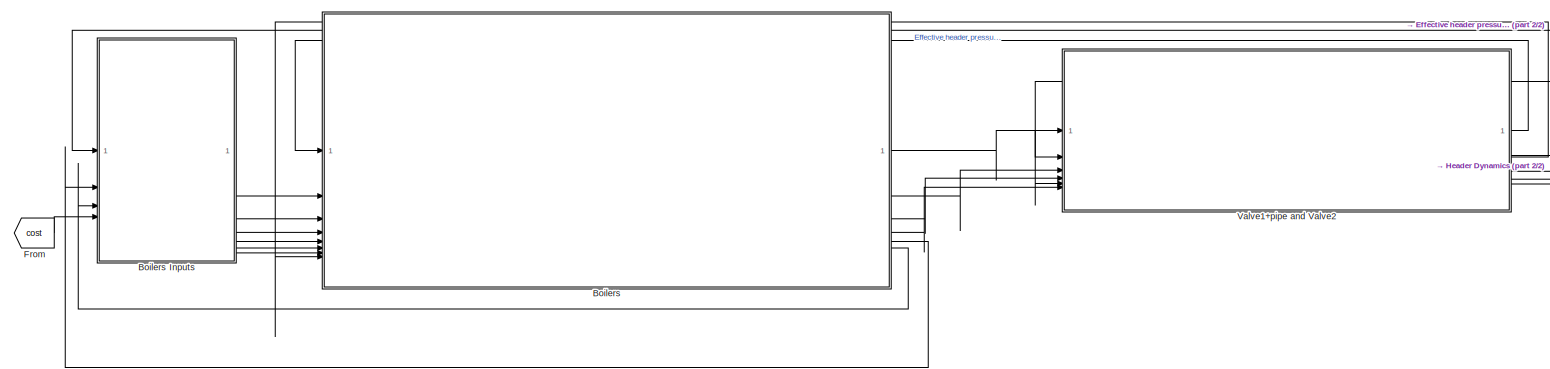
[diagram: root canvas - part 1/2, center side, full height]
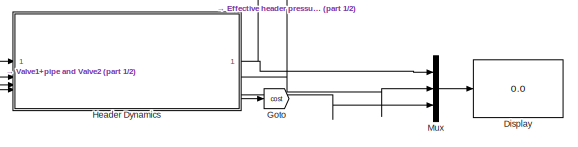
[diagram: root canvas - part 2/2, middle right region]
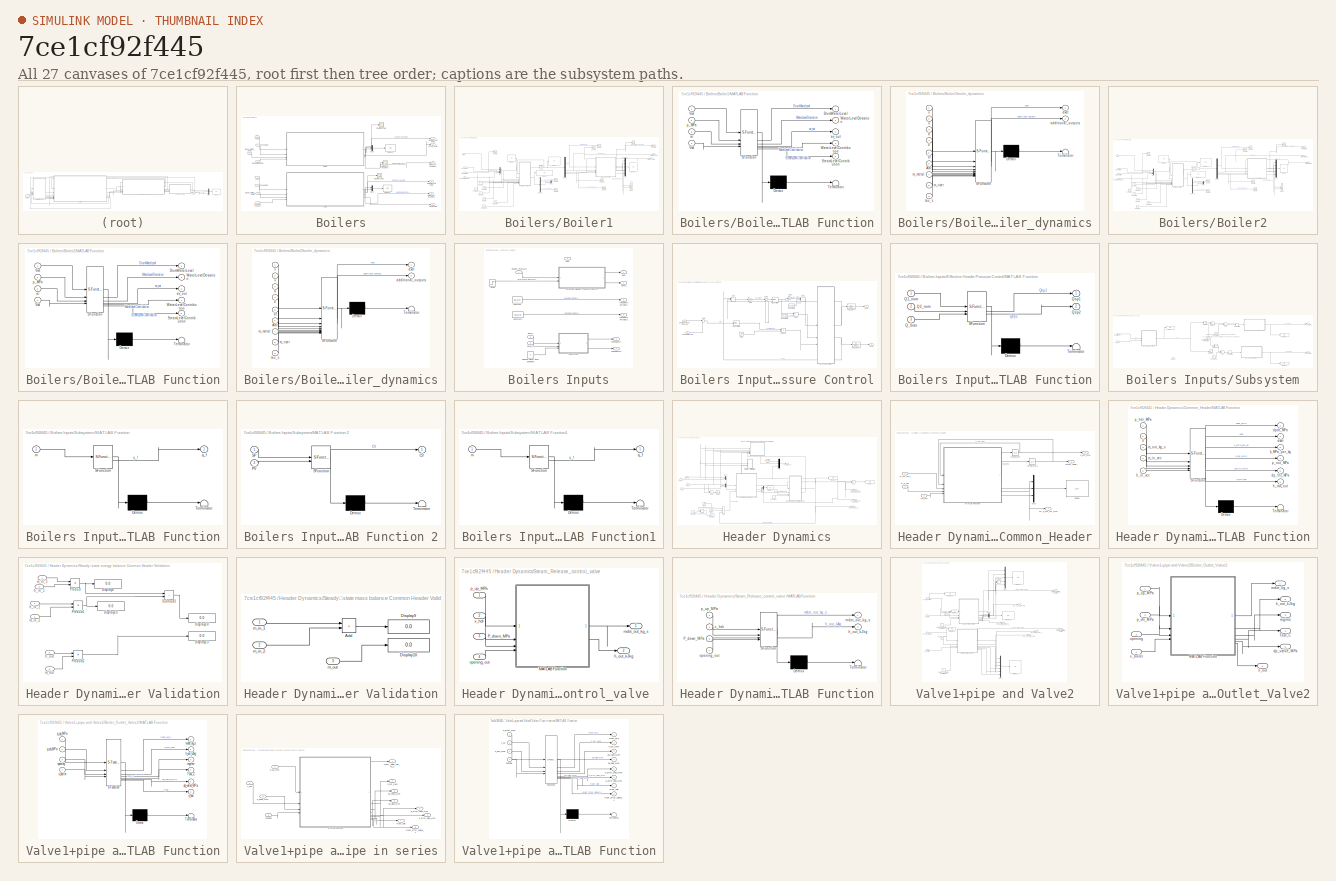
[diagram: thumbnail index - all 27 canvases of the model, root first then tree order]
MODEL slx_7ce1cf92f445
KIND model
CONFIG AbsTol = auto
CONFIG EnableMultiTasking = off
CONFIG FixedStep = 0.02
CONFIG MaxStep = auto
CONFIG MinStep = auto
CONFIG RelTol = 1e-2
CONFIG SampleTimeConstraint = Unconstrained
CONFIG SolverName = FixedStepAuto
CONFIG StartTime = 0.0
CONFIG StopTime = 500
BLOCK [SubSystem] Boilers
BLOCK [SubSystem] Boilers Inputs
BLOCK [Constant] Boilers Inputs/Constant
  Value = u0_1(4)
BLOCK [Constant] Boilers Inputs/Constant1
  Value = u0_2(4)
BLOCK [Constant] Boilers Inputs/Desired water level deviation 
  Value = 0
BLOCK [SubSystem] Boilers Inputs/Effective Header Pressure Control
BLOCK [Sum] Boilers Inputs/Effective Header Pressure Control/Add
  IconShape = rectangular
BLOCK [Sum] Boilers Inputs/Effective Header Pressure Control/Add1
  IconShape = rectangular
BLOCK [Sum] Boilers Inputs/Effective Header Pressure Control/Add2
  IconShape = rectangular
BLOCK [Constant] Boilers Inputs/Effective Header Pressure Control/Constant2
  Value = u0_1(1)
BLOCK [Constant] Boilers Inputs/Effective Header Pressure Control/Constant3
  Value = u0_2(1)
BLOCK [Inport] Boilers Inputs/Effective Header Pressure Control/Desired header pressure
  Port = 2
BLOCK [Gain] Boilers Inputs/Effective Header Pressure Control/Gain
  Gain = 0.5
BLOCK [Gain] Boilers Inputs/Effective Header Pressure Control/Gain1
  Gain = -1.5
BLOCK [Inport] Boilers Inputs/Effective Header Pressure Control/Header Pressure
BLOCK [Outport] Boilers Inputs/Effective Header Pressure Control/Heat1
BLOCK [Outport] Boilers Inputs/Effective Header Pressure Control/Heat2
  Port = 2
BLOCK [SubSystem] Boilers Inputs/Effective Header Pressure Control/MATLAB Function
  ErrorFcn = Stateflow.Translate.translate
  PermitHierarchicalResolution = ExplicitOnly
  SFBlockType = MATLAB Function
  TreatAsAtomicUnit = on
BLOCK [Demux] Boilers Inputs/Effective Header Pressure Control/MATLAB Function/ Demux 
  Outputs = 1
BLOCK [S-Function] Boilers Inputs/Effective Header Pressure Control/MATLAB Function/ SFunction 
  EnableBusSupport = off
  FunctionName = sf_sfun
  PortCounts = [3 3]
  SFcnIsStateOwnerBlock = off
  SFunctionDeploymentMode = off
  Tag = Stateflow S-Function 13
BLOCK [Terminator] Boilers Inputs/Effective Header Pressure Control/MATLAB Function/ Terminator 
BLOCK [Inport] Boilers Inputs/Effective Header Pressure Control/MATLAB Function/Q1_nom
BLOCK [Inport] Boilers Inputs/Effective Header Pressure Control/MATLAB Function/Q2_nom
  Port = 2
BLOCK [Inport] Boilers Inputs/Effective Header Pressure Control/MATLAB Function/Q_bias
  Port = 3
BLOCK [Outport] Boilers Inputs/Effective Header Pressure Control/MATLAB Function/Qsp1
BLOCK [Outport] Boilers Inputs/Effective Header Pressure Control/MATLAB Function/Qsp2
  Port = 2
BLOCK [Reference] Boilers Inputs/Effective Header Pressure Control/PID Controller  REF=slpidlib/PID Controller
  LibrarySourceBlock = simulink/Continuous/PID Controller
  SourceBlock = slpidlib/PID Controller
  SourceType = PID 1dof
BLOCK [Reference] Boilers Inputs/Effective Header Pressure Control/PID Controller1  REF=slpidlib/PID Controller
  LibrarySourceBlock = simulink/Continuous/PID Controller
  SourceBlock = slpidlib/PID Controller
  SourceType = PID 1dof
BLOCK [Product] Boilers Inputs/Effective Header Pressure Control/Product
BLOCK [Step] Boilers Inputs/Effective Header Pressure Control/Step
  SampleTime = 0
  Time = 0
BLOCK [Sum] Boilers Inputs/Effective Header Pressure Control/Sum
  Inputs = |+-
BLOCK [Sum] Boilers Inputs/Effective Header Pressure Control/Sum1
  Inputs = |+-
BLOCK [TransferFcn] Boilers Inputs/Effective Header Pressure Control/Transfer Fcn
  Denominator = [10 1]
BLOCK [TransferFcn] Boilers Inputs/Effective Header Pressure Control/Transfer Fcn2
  Denominator = [10 1]
BLOCK [Outport] Boilers Inputs/Feedwater1
  Port = 2
BLOCK [Outport] Boilers Inputs/Feedwater2
  Port = 5
BLOCK [Inport] Boilers Inputs/Header Pressure
BLOCK [Outport] Boilers Inputs/Heat
BLOCK [Outport] Boilers Inputs/Heat2
  Port = 4
BLOCK [Step] Boilers Inputs/Step
  After = 8.5
  Before = 8.5
  SampleTime = 0
  Time = 250
BLOCK [SubSystem] Boilers Inputs/Subsystem
BLOCK [Sum] Boilers Inputs/Subsystem/Add
  IconShape = rectangular
BLOCK [Sum] Boilers Inputs/Subsystem/Add1
  IconShape = rectangular
BLOCK [Constant] Boilers Inputs/Subsystem/Constant1
  Value = 0.5
BLOCK [Constant] Boilers Inputs/Subsystem/Constant2
  Value = 0.5
BLOCK [Inport] Boilers Inputs/Subsystem/Desire level
  Port = 3
BLOCK [Display] Boilers Inputs/Subsystem/Display
  Decimation = 1
  Format = long
BLOCK [Display] Boilers Inputs/Subsystem/Display1
  Decimation = 1
  Format = long
BLOCK [Display] Boilers Inputs/Subsystem/Display2
  Decimation = 1
  Format = long
BLOCK [Outport] Boilers Inputs/Subsystem/Feedwater1
BLOCK [Outport] Boilers Inputs/Subsystem/Feedwater2
  Port = 2
BLOCK [SubSystem] Boilers Inputs/Subsystem/MATLAB Function
  ErrorFcn = Stateflow.Translate.translate
  PermitHierarchicalResolution = ExplicitOnly
  SFBlockType = MATLAB Function
  TreatAsAtomicUnit = on
BLOCK [SubSystem] Boilers Inputs/Subsystem/MATLAB Function 2
  ErrorFcn = Stateflow.Translate.translate
  PermitHierarchicalResolution = ExplicitOnly
  SFBlockType = MATLAB Function
  TreatAsAtomicUnit = on
BLOCK [Demux] Boilers Inputs/Subsystem/MATLAB Function 2/ Demux 
  Outputs = 1
BLOCK [S-Function] Boilers Inputs/Subsystem/MATLAB Function 2/ SFunction 
  EnableBusSupport = off
  FunctionName = sf_sfun
  PortCounts = [2 2]
  SFcnIsStateOwnerBlock = off
  SFunctionDeploymentMode = off
  Tag = Stateflow S-Function 9
BLOCK [Terminator] Boilers Inputs/Subsystem/MATLAB Function 2/ Terminator 
BLOCK [Outport] Boilers Inputs/Subsystem/MATLAB Function 2/CV
BLOCK [Inport] Boilers Inputs/Subsystem/MATLAB Function 2/PV
  Port = 2
BLOCK [Inport] Boilers Inputs/Subsystem/MATLAB Function 2/SP
BLOCK [Demux] Boilers Inputs/Subsystem/MATLAB Function/ Demux 
  Outputs = 1
BLOCK [S-Function] Boilers Inputs/Subsystem/MATLAB Function/ SFunction 
  EnableBusSupport = off
  FunctionName = sf_sfun
  PortCounts = [1 2]
  SFcnIsStateOwnerBlock = off
  SFunctionDeploymentMode = off
  Tag = Stateflow S-Function 10
BLOCK [Terminator] Boilers Inputs/Subsystem/MATLAB Function/ Terminator 
BLOCK [Inport] Boilers Inputs/Subsystem/MATLAB Function/m
BLOCK [Outport] Boilers Inputs/Subsystem/MATLAB Function/q_f
BLOCK [SubSystem] Boilers Inputs/Subsystem/MATLAB Function1
  ErrorFcn = Stateflow.Translate.translate
  PermitHierarchicalResolution = ExplicitOnly
  SFBlockType = MATLAB Function
  TreatAsAtomicUnit = on
BLOCK [Demux] Boilers Inputs/Subsystem/MATLAB Function1/ Demux 
  Outputs = 1
BLOCK [S-Function] Boilers Inputs/Subsystem/MATLAB Function1/ SFunction 
  EnableBusSupport = off
  FunctionName = sf_sfun
  PortCounts = [1 2]
  SFcnIsStateOwnerBlock = off
  SFunctionDeploymentMode = off
  Tag = Stateflow S-Function 11
BLOCK [Terminator] Boilers Inputs/Subsystem/MATLAB Function1/ Terminator 
BLOCK [Inport] Boilers Inputs/Subsystem/MATLAB Function1/m
BLOCK [Outport] Boilers Inputs/Subsystem/MATLAB Function1/q_f
BLOCK [Product] Boilers Inputs/Subsystem/Product
BLOCK [Product] Boilers Inputs/Subsystem/Product1
BLOCK [RateLimiter] Boilers Inputs/Subsystem/Rate Limiter
  FallingSlewLimit = -0.03
  RisingSlewLimit = 0.03
  SampleTimeMode = inherited
BLOCK [RateLimiter] Boilers Inputs/Subsystem/Rate Limiter1
  FallingSlewLimit = -0.03
  RisingSlewLimit = 0.03
  SampleTimeMode = inherited
BLOCK [Saturate] Boilers Inputs/Subsystem/Saturation
  LowerLimit = -0.45
  UpperLimit = 0.45
BLOCK [Saturate] Boilers Inputs/Subsystem/Saturation1
  LowerLimit = -0.45
  UpperLimit = 0.45
BLOCK [Step] Boilers Inputs/Subsystem/Useful for open loop testing
  SampleTime = 0
  Time = 0
BLOCK [Inport] Boilers Inputs/Subsystem/level_1
BLOCK [Inport] Boilers Inputs/Subsystem/level_2
  Port = 2
BLOCK [Inport] Boilers Inputs/cost
  Port = 4
BLOCK [Outport] Boilers Inputs/feedwater enthalpy1
  Port = 3
BLOCK [Outport] Boilers Inputs/feedwater enthalpy2
  Port = 6
BLOCK [Inport] Boilers Inputs/level_1
  Port = 2
BLOCK [Inport] Boilers Inputs/level_2
  Port = 3
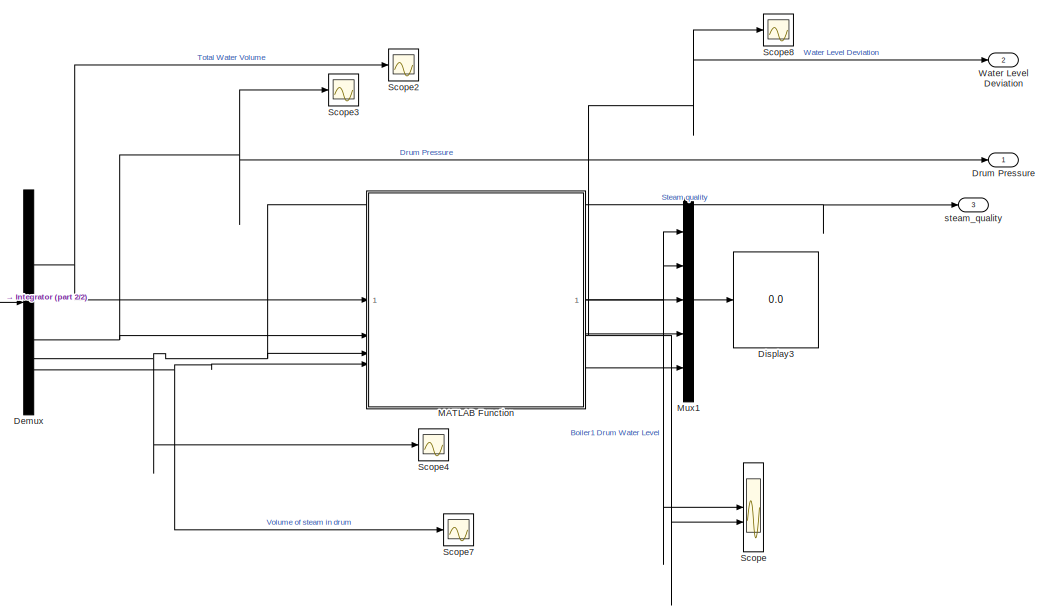
[diagram: Boilers/Boiler1 - part 1/2, right side, full height]
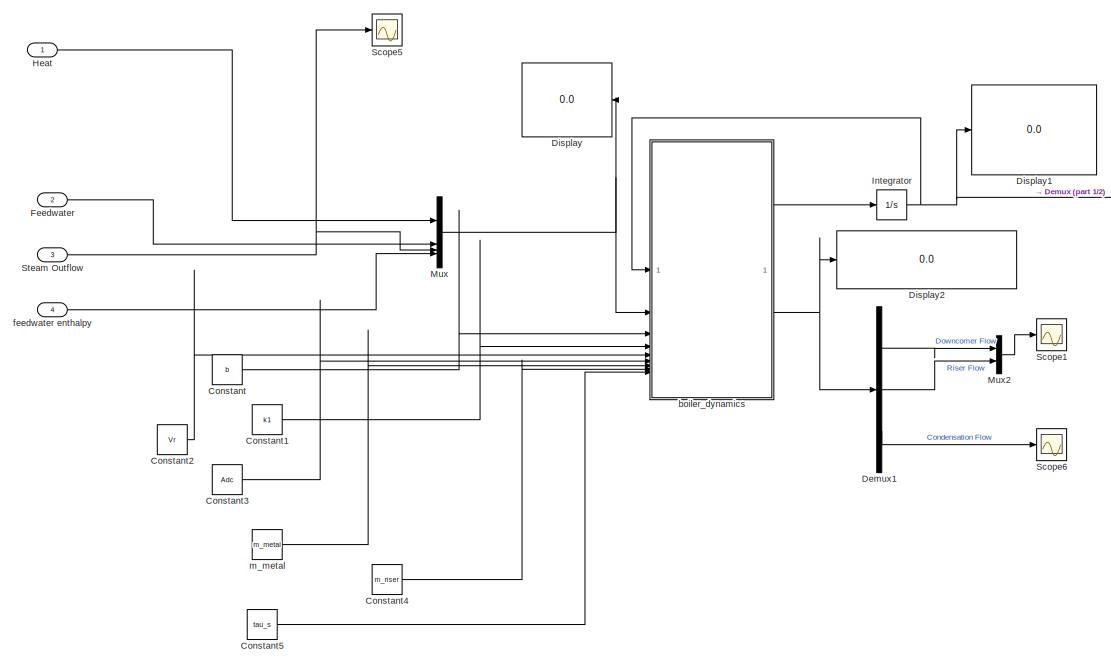
[diagram: Boilers/Boiler1 - part 2/2, left side, full height]
BLOCK [SubSystem] Boilers/Boiler1
BLOCK [Constant] Boilers/Boiler1/Constant
  Value = b
BLOCK [Constant] Boilers/Boiler1/Constant1
  Value = k1
BLOCK [Constant] Boilers/Boiler1/Constant2
  Value = Vr
BLOCK [Constant] Boilers/Boiler1/Constant3
  Value = Adc
BLOCK [Constant] Boilers/Boiler1/Constant4
  Value = m_riser
BLOCK [Constant] Boilers/Boiler1/Constant5
  Value = tau_s
BLOCK [Demux] Boilers/Boiler1/Demux
BLOCK [Demux] Boilers/Boiler1/Demux1
  Outputs = 3
BLOCK [Display] Boilers/Boiler1/Display
  Decimation = 1
  Format = long
  NameLocation = top
BLOCK [Display] Boilers/Boiler1/Display1
  Decimation = 1
  Format = long
BLOCK [Display] Boilers/Boiler1/Display2
  Decimation = 1
BLOCK [Display] Boilers/Boiler1/Display3
  Decimation = 1
BLOCK [Outport] Boilers/Boiler1/Drum Pressure
BLOCK [Inport] Boilers/Boiler1/Feedwater
  Port = 2
BLOCK [Inport] Boilers/Boiler1/Heat
BLOCK [Integrator] Boilers/Boiler1/Integrator
  InitialCondition = x0_1
BLOCK [SubSystem] Boilers/Boiler1/MATLAB Function
  ErrorFcn = Stateflow.Translate.translate
  PermitHierarchicalResolution = ExplicitOnly
  SFBlockType = MATLAB Function
  TreatAsAtomicUnit = on
BLOCK [Demux] Boilers/Boiler1/MATLAB Function/ Demux 
  Outputs = 1
BLOCK [S-Function] Boilers/Boiler1/MATLAB Function/ SFunction 
  EnableBusSupport = off
  FunctionName = sf_sfun
  PortCounts = [4 6]
  SFcnIsStateOwnerBlock = off
  SFunctionDeploymentMode = off
  Tag = Stateflow S-Function 1
BLOCK [Terminator] Boilers/Boiler1/MATLAB Function/ Terminator 
BLOCK [Outport] Boilers/Boiler1/MATLAB Function/DrumWaterLevel
BLOCK [Outport] Boilers/Boiler1/MATLAB Function/SteamLevelContribution
  Port = 5
BLOCK [Inport] Boilers/Boiler1/MATLAB Function/Vsd
  Port = 4
BLOCK [Inport] Boilers/Boiler1/MATLAB Function/Vwt
BLOCK [Outport] Boilers/Boiler1/MATLAB Function/WaterLevelContribution
  Port = 4
BLOCK [Outport] Boilers/Boiler1/MATLAB Function/WaterLevelDeviation
  Port = 2
BLOCK [Inport] Boilers/Boiler1/MATLAB Function/ar
  Port = 3
BLOCK [Outport] Boilers/Boiler1/MATLAB Function/av_out
  Port = 3
BLOCK [Inport] Boilers/Boiler1/MATLAB Function/p_MPa
  Port = 2
BLOCK [Mux] Boilers/Boiler1/Mux
  DisplayOption = bar
BLOCK [Mux] Boilers/Boiler1/Mux1
  DisplayOption = bar
  Inputs = 5
BLOCK [Mux] Boilers/Boiler1/Mux2
  DisplayOption = bar
  Inputs = 2
BLOCK [Scope] Boilers/Boiler1/Scope
  ActiveDisplayYMaximum = 0.97989716685186512
  ActiveDisplayYMinimum = -0.11553187271684388
  DataLoggingVariableName = ScopeData9
  Floating = off
  GraphicalSettings = {"Style":{"BackgroundColor":[0.12941176470588237,0.12941176470588237,0.12941176470588237],"AxesColor":[0.07058823529411765,0.07058823529411765,0.07058823529411765],"LabelsColor":[0.8509803921568627,0.8509803921568627,0.8509803921568627],"PreserveColors":false,"Visible":[true,true],"LineStyle":["-","-"],"LineWidth":[1.5,1.5],"BarWidth":[0.9,0.9],"LineColor":["auto","auto"],"LineFaceAlpha":[1,1],"Li...<+2188ch>
  MultipleDisplayCache = [{"MaxYLimMag":0.97989716685186512,"MaxYLimReal":0.97989716685186512,"MinYLimMag":0,"MinYLimReal":-0.11553187271684388,"PlotAsMagnitudePhase":false,"ShowGrid":true,"ShowLegend":true,"Title":"%<SignalLabel>","YLabel":""}]
  NumInputPorts = 2
  ScopeFrameLocation = window
  ShowLegend = on
  WasSavedAsWebScope = on
  WindowPosition = [-2.000000,34.000000,1284.000000,661.000000,]
BLOCK [Scope] Boilers/Boiler1/Scope1
  ActiveDisplayYMaximum = 1360.0825647224879
  ActiveDisplayYMinimum = 1149.8937170235527
  DataLoggingVariableName = ScopeData6
  Floating = off
  GraphicalSettings = {"Style":{"BackgroundColor":[0.12941176470588237,0.12941176470588237,0.12941176470588237],"AxesColor":[0.07058823529411765,0.07058823529411765,0.07058823529411765],"LabelsColor":[0.8509803921568627,0.8509803921568627,0.8509803921568627],"PreserveColors":false,"Visible":[true,true],"LineStyle":["-","-"],"LineWidth":[1.5,1.5],"BarWidth":[0.9,0.9],"LineColor":["auto","auto"],"LineFaceAlpha":[1,1],"Li...<+2168ch>
  MultipleDisplayCache = [{"MaxYLimMag":1357.3396218709104,"MaxYLimReal":1360.0825647224879,"MinYLimMag":1151.0852850425513,"MinYLimReal":1149.8937170235527,"PlotAsMagnitudePhase":false,"ShowGrid":true,"ShowLegend":false,"Title":"%<SignalLabel>","YLabel":""}]
  NumInputPorts = 1
  ScopeFrameLocation = window
  WasSavedAsWebScope = on
  WindowPosition = [1.000000,49.000000,1279.000000,649.000000,]
BLOCK [Scope] Boilers/Boiler1/Scope2
  DataLoggingVariableName = ScopeData1
  Floating = off
  GraphicalSettings = {"GraphicalSettings":{"LegacySettings":true,"Style":{"Style":{"PlotType":"Auto"}}}}
  NumInputPorts = 1
  WasSavedAsWebScope = on
BLOCK [Scope] Boilers/Boiler1/Scope3
  ActiveDisplayYMaximum = 8.869653644083332
  ActiveDisplayYMinimum = 5.1731172032500083
  Floating = off
  GraphicalSettings = {"Style":{"BackgroundColor":[0.12941176470588237,0.12941176470588237,0.12941176470588237],"AxesColor":[0.07058823529411765,0.07058823529411765,0.07058823529411765],"LabelsColor":[0.8509803921568627,0.8509803921568627,0.8509803921568627],"PreserveColors":false,"Visible":[true],"LineStyle":["-"],"LineWidth":[1.5],"BarWidth":[0.9],"LineColor":["auto"],"LineFaceAlpha":[1],"LineEdgeAlpha":[1],"Marker":...<+2315ch>
  MultipleDisplayCache = [{"MaxYLimMag":8.869653644083332,"MaxYLimReal":8.869653644083332,"MinYLimMag":5.1731172032500083,"MinYLimReal":5.1731172032500083,"PlotAsMagnitudePhase":false,"ShowGrid":true,"ShowLegend":true,"Title":"%<SignalLabel>","YLabel":""}]
  NumInputPorts = 1
  ScopeFrameLocation = window
  ShowLegend = on
  WasSavedAsWebScope = on
  WindowPosition = [322.000000,50.000000,636.000000,640.000000,]
BLOCK [Scope] Boilers/Boiler1/Scope4
  DataLoggingVariableName = ScopeData2
  Floating = off
  GraphicalSettings = {"GraphicalSettings":{"LegacySettings":true,"Style":{"Style":{"PlotType":"Auto"}}}}
  NumInputPorts = 1
  WasSavedAsWebScope = on
BLOCK [Scope] Boilers/Boiler1/Scope5
  ActiveDisplayYMaximum = 87.68969538020076
  ActiveDisplayYMinimum = 81.783639946245515
  DataLoggingVariableName = ScopeData3
  Floating = off
  GraphicalSettings = {"AxesScalingProperties":{"AlignXAxis":"Center","AlignYAxis":"Center","AutoScaleXAxisLimits":false,"AxesScaling":"Manual","AxesScalingNumUpdates":10,"ExpandOnly":true,"ScaleAxesLimitsAtStop":false,"XAxisDataRange":100,"YAxisDataRange":80},"DisplayProperties":{"ColorOrder":["auto","auto","auto","auto","auto","auto","auto","auto","auto","auto","auto","auto","auto","auto","auto","auto","auto","auto",...<+2039ch>
  MultipleDisplayCache = [{"MaxYLimMag":94.81221872444533,"MaxYLimReal":87.68969538020076,"MinYLimMag":74.81221872444533,"MinYLimReal":81.783639946245515,"PlotAsMagnitudePhase":false,"ShowGrid":true,"ShowLegend":false,"Title":"%<SignalLabel>","YLabel":""}]
  NumInputPorts = 1
  ScopeFrameLocation = window
  WasSavedAsWebScope = on
  WindowPosition = [-960.000000,-5.000000,493.000000,696.000000,]
BLOCK [Scope] Boilers/Boiler1/Scope6
  DataLoggingVariableName = ScopeData4
  Floating = off
  GraphicalSettings = {"GraphicalSettings":{"LegacySettings":true,"Style":{"Style":{"PlotType":"Auto"}}}}
  NumInputPorts = 1
  WasSavedAsWebScope = on
BLOCK [Scope] Boilers/Boiler1/Scope7
  DataLoggingVariableName = ScopeData5
  Floating = off
  GraphicalSettings = {"GraphicalSettings":{"LegacySettings":true,"Style":{"Style":{"PlotType":"Auto"}}}}
  NumInputPorts = 1
  WasSavedAsWebScope = on
BLOCK [Scope] Boilers/Boiler1/Scope8
  ActiveDisplayYMaximum = 0.12332586369569878
  ActiveDisplayYMinimum = -0.31931831052985321
  DataLoggingVariableName = ScopeData8
  Floating = off
  GraphicalSettings = {"Style":{"BackgroundColor":[0.12941176470588237,0.12941176470588237,0.12941176470588237],"AxesColor":[0.07058823529411765,0.07058823529411765,0.07058823529411765],"LabelsColor":[0.8509803921568627,0.8509803921568627,0.8509803921568627],"PreserveColors":false,"Visible":[true],"LineStyle":["-"],"LineWidth":[1.5],"BarWidth":[0.9],"LineColor":["auto"],"LineFaceAlpha":[1],"LineEdgeAlpha":[1],"Marker":...<+2283ch>
  MultipleDisplayCache = [{"MaxYLimMag":0.31931831052985321,"MaxYLimReal":0.12332586369569878,"MinYLimMag":0,"MinYLimReal":-0.31931831052985321,"PlotAsMagnitudePhase":false,"ShowGrid":true,"ShowLegend":true,"Title":"%<SignalLabel>","YLabel":""}]
  NumInputPorts = 1
  ScopeFrameLocation = window
  ShowLegend = on
  WasSavedAsWebScope = on
  WindowPosition = [322.000000,50.000000,636.000000,640.000000,]
BLOCK [Inport] Boilers/Boiler1/Steam Outflow
  Port = 3
BLOCK [Outport] Boilers/Boiler1/Water Level Deviation
  Port = 2
BLOCK [SubSystem] Boilers/Boiler1/boiler_dynamics
  ErrorFcn = Stateflow.Translate.translate
  PermitHierarchicalResolution = ExplicitOnly
  SFBlockType = MATLAB Function
  TreatAsAtomicUnit = on
BLOCK [Demux] Boilers/Boiler1/boiler_dynamics/ Demux 
  Outputs = 1
BLOCK [S-Function] Boilers/Boiler1/boiler_dynamics/ SFunction 
  EnableBusSupport = off
  FunctionName = sf_sfun
  PortCounts = [9 3]
  SFcnIsStateOwnerBlock = off
  SFunctionDeploymentMode = off
  Tag = Stateflow S-Function 2
BLOCK [Terminator] Boilers/Boiler1/boiler_dynamics/ Terminator 
BLOCK [Inport] Boilers/Boiler1/boiler_dynamics/Adc
  Port = 6
BLOCK [Inport] Boilers/Boiler1/boiler_dynamics/Vr
  Port = 5
BLOCK [Outport] Boilers/Boiler1/boiler_dynamics/additional_outputs
  Port = 2
BLOCK [Inport] Boilers/Boiler1/boiler_dynamics/b
  Port = 3
BLOCK [Outport] Boilers/Boiler1/boiler_dynamics/dxdt
BLOCK [Inport] Boilers/Boiler1/boiler_dynamics/k
  Port = 4
BLOCK [Inport] Boilers/Boiler1/boiler_dynamics/m_metal
  Port = 7
BLOCK [Inport] Boilers/Boiler1/boiler_dynamics/m_riser
  Port = 8
BLOCK [Inport] Boilers/Boiler1/boiler_dynamics/tau_s
  Port = 9
BLOCK [Inport] Boilers/Boiler1/boiler_dynamics/u
  Port = 2
BLOCK [Inport] Boilers/Boiler1/boiler_dynamics/x
BLOCK [Inport] Boilers/Boiler1/feedwater enthalpy
  Port = 4
BLOCK [Constant] Boilers/Boiler1/m_metal 
  Value = m_metal
BLOCK [Outport] Boilers/Boiler1/steam_quality
  Port = 3
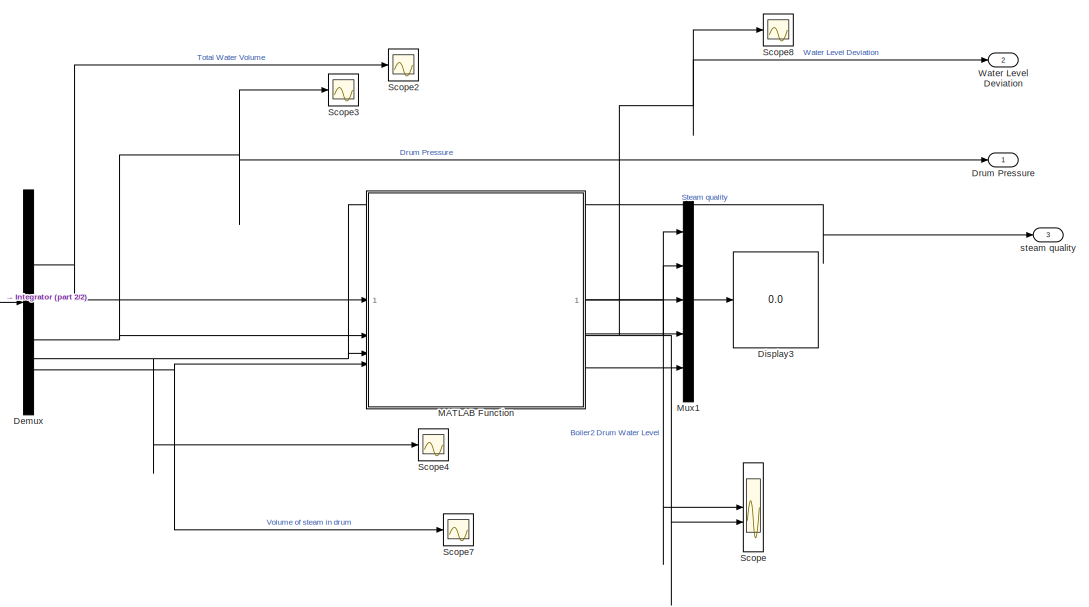
[diagram: Boilers/Boiler2 - part 1/2, right side, full height]
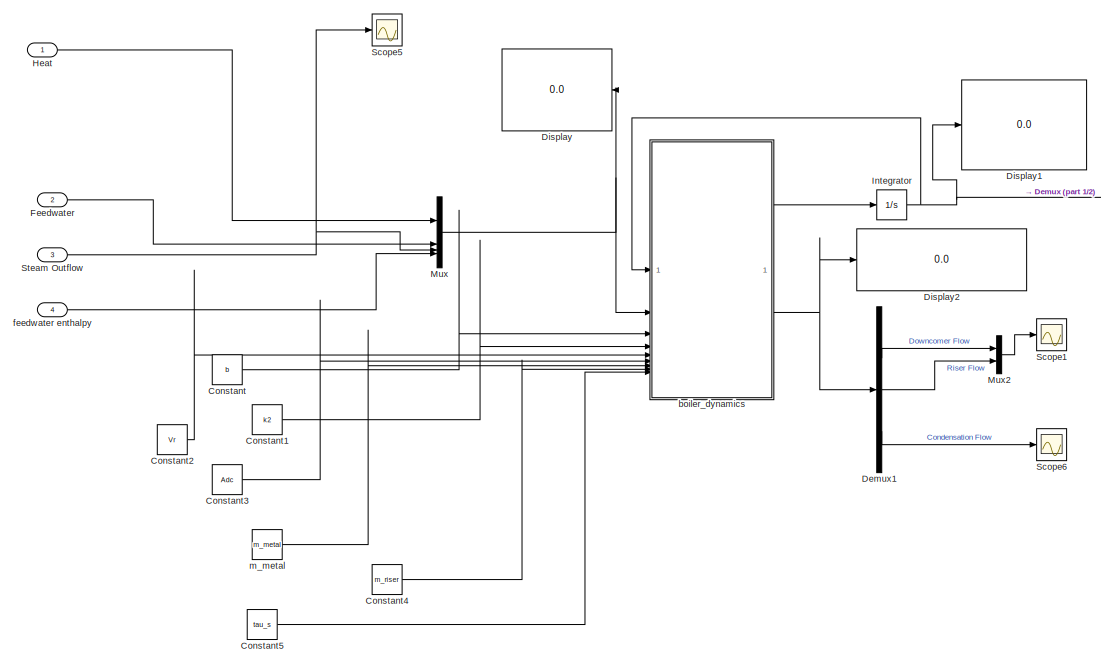
[diagram: Boilers/Boiler2 - part 2/2, left side, full height]
BLOCK [SubSystem] Boilers/Boiler2
BLOCK [Constant] Boilers/Boiler2/Constant
  Value = b
BLOCK [Constant] Boilers/Boiler2/Constant1
  Value = k2
BLOCK [Constant] Boilers/Boiler2/Constant2
  Value = Vr
BLOCK [Constant] Boilers/Boiler2/Constant3
  Value = Adc
BLOCK [Constant] Boilers/Boiler2/Constant4
  Value = m_riser
BLOCK [Constant] Boilers/Boiler2/Constant5
  Value = tau_s
BLOCK [Demux] Boilers/Boiler2/Demux
BLOCK [Demux] Boilers/Boiler2/Demux1
  Outputs = 3
BLOCK [Display] Boilers/Boiler2/Display
  Decimation = 1
  Format = long
  NameLocation = top
BLOCK [Display] Boilers/Boiler2/Display1
  Decimation = 1
  Format = long
BLOCK [Display] Boilers/Boiler2/Display2
  Decimation = 1
BLOCK [Display] Boilers/Boiler2/Display3
  Decimation = 1
BLOCK [Outport] Boilers/Boiler2/Drum Pressure
BLOCK [Inport] Boilers/Boiler2/Feedwater
  Port = 2
BLOCK [Inport] Boilers/Boiler2/Heat
BLOCK [Integrator] Boilers/Boiler2/Integrator
  InitialCondition = x0_2
BLOCK [SubSystem] Boilers/Boiler2/MATLAB Function
  ErrorFcn = Stateflow.Translate.translate
  PermitHierarchicalResolution = ExplicitOnly
  SFBlockType = MATLAB Function
  TreatAsAtomicUnit = on
BLOCK [Demux] Boilers/Boiler2/MATLAB Function/ Demux 
  Outputs = 1
BLOCK [S-Function] Boilers/Boiler2/MATLAB Function/ SFunction 
  EnableBusSupport = off
  FunctionName = sf_sfun
  PortCounts = [4 6]
  SFcnIsStateOwnerBlock = off
  SFunctionDeploymentMode = off
  Tag = Stateflow S-Function 3
BLOCK [Terminator] Boilers/Boiler2/MATLAB Function/ Terminator 
BLOCK [Outport] Boilers/Boiler2/MATLAB Function/DrumWaterLevel
BLOCK [Outport] Boilers/Boiler2/MATLAB Function/SteamLevelContribution
  Port = 5
BLOCK [Inport] Boilers/Boiler2/MATLAB Function/Vsd
  Port = 4
BLOCK [Inport] Boilers/Boiler2/MATLAB Function/Vwt
BLOCK [Outport] Boilers/Boiler2/MATLAB Function/WaterLevelContribution
  Port = 4
BLOCK [Outport] Boilers/Boiler2/MATLAB Function/WaterLevelDeviation
  Port = 2
BLOCK [Inport] Boilers/Boiler2/MATLAB Function/ar
  Port = 3
BLOCK [Outport] Boilers/Boiler2/MATLAB Function/av_out
  Port = 3
BLOCK [Inport] Boilers/Boiler2/MATLAB Function/p_MPa
  Port = 2
BLOCK [Mux] Boilers/Boiler2/Mux
  DisplayOption = bar
BLOCK [Mux] Boilers/Boiler2/Mux1
  DisplayOption = bar
  Inputs = 5
BLOCK [Mux] Boilers/Boiler2/Mux2
  DisplayOption = bar
  Inputs = 2
BLOCK [Scope] Boilers/Boiler2/Scope
  ActiveDisplayYMaximum = 1.0681425276889893
  ActiveDisplayYMinimum = -0.43318786127461034
  DataLoggingVariableName = ScopeData9
  Floating = off
  GraphicalSettings = {"Style":{"BackgroundColor":[0.12941176470588237,0.12941176470588237,0.12941176470588237],"AxesColor":[0.07058823529411765,0.07058823529411765,0.07058823529411765],"LabelsColor":[0.8509803921568627,0.8509803921568627,0.8509803921568627],"PreserveColors":false,"Visible":[true,true],"LineStyle":["-","-"],"LineWidth":[1.5,1.5],"BarWidth":[0.9,0.9],"LineColor":["auto","auto"],"LineFaceAlpha":[1,1],"Li...<+2176ch>
  MultipleDisplayCache = [{"MaxYLimMag":1.0681425276889893,"MaxYLimReal":1.0681425276889893,"MinYLimMag":0,"MinYLimReal":-0.43318786127461034,"PlotAsMagnitudePhase":false,"ShowGrid":true,"ShowLegend":true,"Title":"%<SignalLabel>","YLabel":""}]
  NumInputPorts = 2
  ScopeFrameLocation = window
  ShowLegend = on
  WasSavedAsWebScope = on
  WindowPosition = [343.000000,224.000000,1252.000000,599.000000,]
BLOCK [Scope] Boilers/Boiler2/Scope1
  ActiveDisplayYMaximum = 1360.0825647224879
  ActiveDisplayYMinimum = 1149.8937170235527
  DataLoggingVariableName = ScopeData6
  Floating = off
  GraphicalSettings = {"Style":{"BackgroundColor":[0.12941176470588237,0.12941176470588237,0.12941176470588237],"AxesColor":[0.07058823529411765,0.07058823529411765,0.07058823529411765],"LabelsColor":[0.8509803921568627,0.8509803921568627,0.8509803921568627],"PreserveColors":false,"Visible":[true,true],"LineStyle":["-","-"],"LineWidth":[1.5,1.5],"BarWidth":[0.9,0.9],"LineColor":["auto","auto"],"LineFaceAlpha":[1,1],"Li...<+2168ch>
  MultipleDisplayCache = [{"MaxYLimMag":1357.3396218709104,"MaxYLimReal":1360.0825647224879,"MinYLimMag":1151.0852850425513,"MinYLimReal":1149.8937170235527,"PlotAsMagnitudePhase":false,"ShowGrid":true,"ShowLegend":false,"Title":"%<SignalLabel>","YLabel":""}]
  NumInputPorts = 1
  ScopeFrameLocation = window
  WasSavedAsWebScope = on
  WindowPosition = [1.000000,49.000000,1279.000000,649.000000,]
BLOCK [Scope] Boilers/Boiler2/Scope2
  DataLoggingVariableName = ScopeData1
  Floating = off
  GraphicalSettings = {"GraphicalSettings":{"LegacySettings":true,"Style":{"Style":{"PlotType":"Auto"}}}}
  NumInputPorts = 1
  WasSavedAsWebScope = on
BLOCK [Scope] Boilers/Boiler2/Scope3
  ActiveDisplayYMaximum = 9.62463808005422
  ActiveDisplayYMinimum = 7.2515160346094891
  Floating = off
  GraphicalSettings = {"Style":{"BackgroundColor":[0.12941176470588237,0.12941176470588237,0.12941176470588237],"AxesColor":[0.07058823529411765,0.07058823529411765,0.07058823529411765],"LabelsColor":[0.8509803921568627,0.8509803921568627,0.8509803921568627],"PreserveColors":false,"Visible":[true],"LineStyle":["-"],"LineWidth":[1.5],"BarWidth":[0.9],"LineColor":["auto"],"LineFaceAlpha":[1],"LineEdgeAlpha":[1],"Marker":...<+2315ch>
  MultipleDisplayCache = [{"MaxYLimMag":9.62463808005422,"MaxYLimReal":9.62463808005422,"MinYLimMag":7.2515160346094891,"MinYLimReal":7.2515160346094891,"PlotAsMagnitudePhase":false,"ShowGrid":true,"ShowLegend":true,"Title":"%<SignalLabel>","YLabel":""}]
  NumInputPorts = 1
  ScopeFrameLocation = window
  ShowLegend = on
  WasSavedAsWebScope = on
  WindowPosition = [-1278.000000,50.000000,637.000000,641.000000,]
BLOCK [Scope] Boilers/Boiler2/Scope4
  DataLoggingVariableName = ScopeData2
  Floating = off
  GraphicalSettings = {"GraphicalSettings":{"LegacySettings":true,"Style":{"Style":{"PlotType":"Auto"}}}}
  NumInputPorts = 1
  WasSavedAsWebScope = on
BLOCK [Scope] Boilers/Boiler2/Scope5
  ActiveDisplayYMaximum = 87.68969538020076
  ActiveDisplayYMinimum = 81.783639946245515
  DataLoggingVariableName = ScopeData3
  Floating = off
  GraphicalSettings = {"AxesScalingProperties":{"AlignXAxis":"Center","AlignYAxis":"Center","AutoScaleXAxisLimits":false,"AxesScaling":"Manual","AxesScalingNumUpdates":10,"ExpandOnly":true,"ScaleAxesLimitsAtStop":false,"XAxisDataRange":100,"YAxisDataRange":80},"DisplayProperties":{"ColorOrder":["auto","auto","auto","auto","auto","auto","auto","auto","auto","auto","auto","auto","auto","auto","auto","auto","auto","auto",...<+2039ch>
  MultipleDisplayCache = [{"MaxYLimMag":94.81221872444533,"MaxYLimReal":87.68969538020076,"MinYLimMag":74.81221872444533,"MinYLimReal":81.783639946245515,"PlotAsMagnitudePhase":false,"ShowGrid":true,"ShowLegend":false,"Title":"%<SignalLabel>","YLabel":""}]
  NumInputPorts = 1
  ScopeFrameLocation = window
  WasSavedAsWebScope = on
  WindowPosition = [-960.000000,-5.000000,493.000000,696.000000,]
BLOCK [Scope] Boilers/Boiler2/Scope6
  DataLoggingVariableName = ScopeData4
  Floating = off
  GraphicalSettings = {"GraphicalSettings":{"LegacySettings":true,"Style":{"Style":{"PlotType":"Auto"}}}}
  NumInputPorts = 1
  WasSavedAsWebScope = on
BLOCK [Scope] Boilers/Boiler2/Scope7
  DataLoggingVariableName = ScopeData5
  Floating = off
  GraphicalSettings = {"GraphicalSettings":{"LegacySettings":true,"Style":{"Style":{"PlotType":"Auto"}}}}
  NumInputPorts = 1
  WasSavedAsWebScope = on
BLOCK [Scope] Boilers/Boiler2/Scope8
  ActiveDisplayYMaximum = 0.091752188934218326
  ActiveDisplayYMinimum = -0.1700298535717597
  DataLoggingVariableName = ScopeData8
  Floating = off
  GraphicalSettings = {"Style":{"BackgroundColor":[0.12941176470588237,0.12941176470588237,0.12941176470588237],"AxesColor":[0.07058823529411765,0.07058823529411765,0.07058823529411765],"LabelsColor":[0.8509803921568627,0.8509803921568627,0.8509803921568627],"PreserveColors":false,"Visible":[true],"LineStyle":["-"],"LineWidth":[1.5],"BarWidth":[0.9],"LineColor":["auto"],"LineFaceAlpha":[1],"LineEdgeAlpha":[1],"Marker":...<+2283ch>
  MultipleDisplayCache = [{"MaxYLimMag":0.1700298535717597,"MaxYLimReal":0.091752188934218326,"MinYLimMag":0,"MinYLimReal":-0.1700298535717597,"PlotAsMagnitudePhase":false,"ShowGrid":true,"ShowLegend":true,"Title":"%<SignalLabel>","YLabel":""}]
  NumInputPorts = 1
  ScopeFrameLocation = window
  ShowLegend = on
  WasSavedAsWebScope = on
  WindowPosition = [1.000000,49.000000,1280.000000,649.000000,]
BLOCK [Inport] Boilers/Boiler2/Steam Outflow
  Port = 3
BLOCK [Outport] Boilers/Boiler2/Water Level Deviation
  Port = 2
BLOCK [SubSystem] Boilers/Boiler2/boiler_dynamics
  ErrorFcn = Stateflow.Translate.translate
  PermitHierarchicalResolution = ExplicitOnly
  SFBlockType = MATLAB Function
  TreatAsAtomicUnit = on
BLOCK [Demux] Boilers/Boiler2/boiler_dynamics/ Demux 
  Outputs = 1
BLOCK [S-Function] Boilers/Boiler2/boiler_dynamics/ SFunction 
  EnableBusSupport = off
  FunctionName = sf_sfun
  PortCounts = [9 3]
  SFcnIsStateOwnerBlock = off
  SFunctionDeploymentMode = off
  Tag = Stateflow S-Function 4
BLOCK [Terminator] Boilers/Boiler2/boiler_dynamics/ Terminator 
BLOCK [Inport] Boilers/Boiler2/boiler_dynamics/Adc
  Port = 6
BLOCK [Inport] Boilers/Boiler2/boiler_dynamics/Vr
  Port = 5
BLOCK [Outport] Boilers/Boiler2/boiler_dynamics/additional_outputs
  Port = 2
BLOCK [Inport] Boilers/Boiler2/boiler_dynamics/b
  Port = 3
BLOCK [Outport] Boilers/Boiler2/boiler_dynamics/dxdt
BLOCK [Inport] Boilers/Boiler2/boiler_dynamics/k
  Port = 4
BLOCK [Inport] Boilers/Boiler2/boiler_dynamics/m_metal
  Port = 7
BLOCK [Inport] Boilers/Boiler2/boiler_dynamics/m_riser
  Port = 8
BLOCK [Inport] Boilers/Boiler2/boiler_dynamics/tau_s
  Port = 9
BLOCK [Inport] Boilers/Boiler2/boiler_dynamics/u
  Port = 2
BLOCK [Inport] Boilers/Boiler2/boiler_dynamics/x
BLOCK [Inport] Boilers/Boiler2/feedwater enthalpy
  Port = 4
BLOCK [Constant] Boilers/Boiler2/m_metal 
  Value = m_metal
BLOCK [Outport] Boilers/Boiler2/steam quality
  Port = 3
BLOCK [Display] Boilers/Display5
  Decimation = 1
BLOCK [Display] Boilers/Display6
  Decimation = 1
BLOCK [Scope] Boilers/Drum Pressure1
  ActiveDisplayYMaximum = 65.31375763544925
  ActiveDisplayYMinimum = 2.409582484950084
  DataLoggingVariableName = ScopeData7
  Floating = off
  GraphicalSettings = {"Style":{"BackgroundColor":[0.12941176470588237,0.12941176470588237,0.12941176470588237],"AxesColor":[0.07058823529411765,0.07058823529411765,0.07058823529411765],"LabelsColor":[0.8509803921568627,0.8509803921568627,0.8509803921568627],"PreserveColors":false,"Visible":[true,true],"LineStyle":["-","-"],"LineWidth":[1.5,1.5],"BarWidth":[0.9,0.9],"LineColor":["auto","auto"],"LineFaceAlpha":[1,1],"Li...<+2520ch>
  MultipleDisplayCache = [{"MaxYLimMag":65.31375763544925,"MaxYLimReal":65.31375763544925,"MinYLimMag":2.409582484950084,"MinYLimReal":2.409582484950084,"PlotAsMagnitudePhase":false,"ShowGrid":true,"ShowLegend":true,"Title":"%<SignalLabel>","YLabel":""}]
  NumInputPorts = 1
  ScopeFrameLocation = window
  ShowLegend = on
  WasSavedAsWebScope = on
  WindowPosition = [718.000000,260.000000,560.000000,420.000000,]
BLOCK [Scope] Boilers/Drum Pressure2
  DataLoggingVariableName = ScopeData11
  Floating = off
  GraphicalSettings = {"GraphicalSettings":{"LegacySettings":true,"Style":{"Style":{"PlotType":"Auto"}}}}
  NumInputPorts = 1
  WasSavedAsWebScope = on
BLOCK [Inport] Boilers/Feedwater
  Port = 3
BLOCK [Inport] Boilers/Feedwater1
  Port = 6
BLOCK [Inport] Boilers/Heat1
  Port = 2
BLOCK [Inport] Boilers/Heat2
  Port = 5
BLOCK [Mux] Boilers/Mux3
  DisplayOption = bar
  Inputs = 2
BLOCK [Mux] Boilers/Mux4
  DisplayOption = bar
  Inputs = 2
BLOCK [Inport] Boilers/Steam_Outflow_Boiler1
BLOCK [Inport] Boilers/Steam_Outflow_Boiler2
  Port = 8
BLOCK [Scope] Boilers/Water Level Deviation 1
  DataLoggingVariableName = ScopeData10
  Floating = off
  GraphicalSettings = {"GraphicalSettings":{"LegacySettings":true,"Style":{"Style":{"PlotType":"Auto"}}}}
  NumInputPorts = 1
  WasSavedAsWebScope = on
BLOCK [Outport] Boilers/Water Level Deviation1
  Port = 5
BLOCK [Outport] Boilers/Water Level Deviation2
  Port = 6
BLOCK [Outport] Boilers/drum pressure boiler1
BLOCK [Outport] Boilers/drum pressure boiler2
  Port = 3
BLOCK [Inport] Boilers/feedwater enthalpy
  Port = 4
BLOCK [Inport] Boilers/feedwater enthalpy1
  Port = 7
BLOCK [Outport] Boilers/steam quality
  Port = 4
BLOCK [Outport] Boilers/steam_quality
  Port = 2
BLOCK [Display] Display
  Decimation = 1
  Format = long
BLOCK [From] From
  GotoTag = cost
BLOCK [Goto] Goto
  GotoTag = cost
BLOCK [SubSystem] Header Dynamics
BLOCK [Sum] Header Dynamics/Add
  IconShape = rectangular
  Inputs = +++
BLOCK [Sum] Header Dynamics/Add1
  IconShape = rectangular
BLOCK [Sum] Header Dynamics/Add2
  IconShape = rectangular
  Inputs = +-
BLOCK [Sum] Header Dynamics/Add3
  IconShape = rectangular
BLOCK [SubSystem] Header Dynamics/Common_Header
BLOCK [Display] Header Dynamics/Common_Header/Display
  Decimation = 1
  Format = long
BLOCK [Integrator] Header Dynamics/Common_Header/Integrator
  InitialCondition = 8.5
BLOCK [Integrator] Header Dynamics/Common_Header/Integrator1
  InitialCondition = 8.509
BLOCK [SubSystem] Header Dynamics/Common_Header/MATLAB Function
  ErrorFcn = Stateflow.Translate.translate
  PermitHierarchicalResolution = ExplicitOnly
  SFBlockType = MATLAB Function
  TreatAsAtomicUnit = on
BLOCK [Demux] Header Dynamics/Common_Header/MATLAB Function/ Demux 
  Outputs = 1
BLOCK [S-Function] Header Dynamics/Common_Header/MATLAB Function/ SFunction 
  EnableBusSupport = off
  FunctionName = sf_sfun
  PortCounts = [5 7]
  SFcnIsStateOwnerBlock = off
  SFunctionDeploymentMode = off
  Tag = Stateflow S-Function 7
BLOCK [Terminator] Header Dynamics/Common_Header/MATLAB Function/ Terminator 
BLOCK [Outport] Header Dynamics/Common_Header/MATLAB Function/dp_fric_MPa
  Port = 5
BLOCK [Outport] Header Dynamics/Common_Header/MATLAB Function/dpdt_MPa
BLOCK [Outport] Header Dynamics/Common_Header/MATLAB Function/dxdt
  Port = 2
BLOCK [Inport] Header Dynamics/Common_Header/MATLAB Function/h_in_vec
  Port = 5
BLOCK [Outport] Header Dynamics/Common_Header/MATLAB Function/h_mix_out
  Port = 6
BLOCK [Outport] Header Dynamics/Common_Header/MATLAB Function/k_MPa_per_kg
  Port = 3
BLOCK [Inport] Header Dynamics/Common_Header/MATLAB Function/m_in_vec
  Port = 4
BLOCK [Inport] Header Dynamics/Common_Header/MATLAB Function/m_out_kg_s
  Port = 3
BLOCK [Inport] Header Dynamics/Common_Header/MATLAB Function/p_hdr_MPa
BLOCK [Outport] Header Dynamics/Common_Header/MATLAB Function/p_out_MPa
  Port = 4
BLOCK [Inport] Header Dynamics/Common_Header/MATLAB Function/x
  Port = 2
BLOCK [Mux] Header Dynamics/Common_Header/Mux
  DisplayOption = bar
  Inputs = 3
BLOCK [Outport] Header Dynamics/Common_Header/Steam_Quality
  Port = 2
BLOCK [Outport] Header Dynamics/Common_Header/eff_p_hdr_out_MPa
BLOCK [Inport] Header Dynamics/Common_Header/h_in_vec
  Port = 2
BLOCK [Inport] Header Dynamics/Common_Header/m_in_vec
BLOCK [Inport] Header Dynamics/Common_Header/m_out_kg_s
  Port = 3
BLOCK [Outport] Header Dynamics/Common_Header/p_hdr_MPa
  Port = 3
BLOCK [Constant] Header Dynamics/Constant
  Value = 75.4
BLOCK [Constant] Header Dynamics/Constant2
BLOCK [Display] Header Dynamics/Display
  Decimation = 1
BLOCK [Display] Header Dynamics/Display1
  Decimation = 1
BLOCK [Display] Header Dynamics/Display2
  Decimation = 1
BLOCK [Display] Header Dynamics/Display3
  Decimation = 1
BLOCK [From] Header Dynamics/From
  GotoTag = h_in_tot
BLOCK [Goto] Header Dynamics/Goto1
  GotoTag = h_in_tot
BLOCK [Outport] Header Dynamics/Header Pressure Node B
BLOCK [Constant] Header Dynamics/Load Pressure
  Value = 8.43
BLOCK [Mux] Header Dynamics/Mux
  DisplayOption = bar
  Inputs = 2
BLOCK [Mux] Header Dynamics/Mux1
  DisplayOption = bar
  Inputs = 3
BLOCK [Mux] Header Dynamics/Mux2
  DisplayOption = bar
  Inputs = 2
BLOCK [Mux] Header Dynamics/Mux5
  DisplayOption = bar
  Inputs = 2
BLOCK [SubSystem] Header Dynamics/Steady‑state energy balance Common Header Validation
BLOCK [Display] Header Dynamics/Steady‑state energy balance Common Header Validation/Display10
  Decimation = 1
BLOCK [Display] Header Dynamics/Steady‑state energy balance Common Header Validation/Display13
  Decimation = 1
  Format = long
BLOCK [Display] Header Dynamics/Steady‑state energy balance Common Header Validation/Display14
  Decimation = 1
  Format = long
BLOCK [Display] Header Dynamics/Steady‑state energy balance Common Header Validation/Display9
  Decimation = 1
BLOCK [Product] Header Dynamics/Steady‑state energy balance Common Header Validation/Product
BLOCK [Product] Header Dynamics/Steady‑state energy balance Common Header Validation/Product1
BLOCK [Product] Header Dynamics/Steady‑state energy balance Common Header Validation/Product2
BLOCK [Sum] Header Dynamics/Steady‑state energy balance Common Header Validation/Subtract3
  IconShape = rectangular
BLOCK [Inport] Header Dynamics/Steady‑state energy balance Common Header Validation/h_in_1
  Port = 3
BLOCK [Inport] Header Dynamics/Steady‑state energy balance Common Header Validation/h_in_2
  Port = 4
BLOCK [Inport] Header Dynamics/Steady‑state energy balance Common Header Validation/h_out
  NameLocation = top
  Port = 6
BLOCK [Inport] Header Dynamics/Steady‑state energy balance Common Header Validation/m_in_1
BLOCK [Inport] Header Dynamics/Steady‑state energy balance Common Header Validation/m_in_2
  Port = 2
BLOCK [Inport] Header Dynamics/Steady‑state energy balance Common Header Validation/m_out
  Port = 5
BLOCK [SubSystem] Header Dynamics/Steady‑state mass balance Common Header Validation
BLOCK [Sum] Header Dynamics/Steady‑state mass balance Common Header Validation/Add
  IconShape = rectangular
BLOCK [Display] Header Dynamics/Steady‑state mass balance Common Header Validation/Display10
  Decimation = 1
  Format = long
BLOCK [Display] Header Dynamics/Steady‑state mass balance Common Header Validation/Display9
  Decimation = 1
  Format = long
BLOCK [Inport] Header Dynamics/Steady‑state mass balance Common Header Validation/m_in_1
BLOCK [Inport] Header Dynamics/Steady‑state mass balance Common Header Validation/m_in_2
  Port = 2
BLOCK [Inport] Header Dynamics/Steady‑state mass balance Common Header Validation/m_out
  Port = 3
BLOCK [SubSystem] Header Dynamics/Steam_Release_control_valve 
BLOCK [SubSystem] Header Dynamics/Steam_Release_control_valve /MATLAB Function
  ErrorFcn = Stateflow.Translate.translate
  PermitHierarchicalResolution = ExplicitOnly
  SFBlockType = MATLAB Function
  TreatAsAtomicUnit = on
BLOCK [Demux] Header Dynamics/Steam_Release_control_valve /MATLAB Function/ Demux 
  Outputs = 1
BLOCK [S-Function] Header Dynamics/Steam_Release_control_valve /MATLAB Function/ SFunction 
  EnableBusSupport = off
  FunctionName = sf_sfun
  PortCounts = [4 3]
  SFcnIsStateOwnerBlock = off
  SFunctionDeploymentMode = off
  Tag = Stateflow S-Function 8
BLOCK [Terminator] Header Dynamics/Steam_Release_control_valve /MATLAB Function/ Terminator 
BLOCK [Inport] Header Dynamics/Steam_Release_control_valve /MATLAB Function/P_down_MPa
  Port = 3
BLOCK [Outport] Header Dynamics/Steam_Release_control_valve /MATLAB Function/h_out_kJkg
  Port = 2
BLOCK [Outport] Header Dynamics/Steam_Release_control_valve /MATLAB Function/mdot_out_kg_s
BLOCK [Inport] Header Dynamics/Steam_Release_control_valve /MATLAB Function/opening_out
  Port = 4
BLOCK [Inport] Header Dynamics/Steam_Release_control_valve /MATLAB Function/p_up_MPa
BLOCK [Inport] Header Dynamics/Steam_Release_control_valve /MATLAB Function/x_hdr
  Port = 2
BLOCK [Inport] Header Dynamics/Steam_Release_control_valve /P_down_MPa
  Port = 3
BLOCK [Outport] Header Dynamics/Steam_Release_control_valve /h_out_kJkg
  Port = 2
BLOCK [Outport] Header Dynamics/Steam_Release_control_valve /mdot_out_kg_s
BLOCK [Inport] Header Dynamics/Steam_Release_control_valve /opening_out
  Port = 4
BLOCK [Inport] Header Dynamics/Steam_Release_control_valve /p_up_MPa
BLOCK [Inport] Header Dynamics/Steam_Release_control_valve /x_hdr
  Port = 2
BLOCK [Step] Header Dynamics/Step
  After = 10
  SampleTime = 0
  Time = 560
BLOCK [Step] Header Dynamics/Step1
  After = -10
  SampleTime = 0
  Time = 550
BLOCK [Outport] Header Dynamics/cost_func_in
  Port = 4
BLOCK [Outport] Header Dynamics/effective Header Pressure Node C
  Port = 2
BLOCK [Inport] Header Dynamics/h_in_1
  Port = 3
BLOCK [Inport] Header Dynamics/h_in_2
  Port = 4
BLOCK [Inport] Header Dynamics/m_in_1
BLOCK [Inport] Header Dynamics/m_in_2
  Port = 2
BLOCK [Outport] Header Dynamics/mdot_out_kg_s
  Port = 3
BLOCK [Mux] Mux
  DisplayOption = bar
  Inputs = 3
BLOCK [SubSystem] Valve1+pipe and Valve2
BLOCK [SubSystem] Valve1+pipe and Valve2/Boiler_Outlet_Valve2
BLOCK [SubSystem] Valve1+pipe and Valve2/Boiler_Outlet_Valve2/MATLAB Function
  ErrorFcn = Stateflow.Translate.translate
  PermitHierarchicalResolution = ExplicitOnly
  SFBlockType = MATLAB Function
  TreatAsAtomicUnit = on
BLOCK [Demux] Valve1+pipe and Valve2/Boiler_Outlet_Valve2/MATLAB Function/ Demux 
  Outputs = 1
BLOCK [S-Function] Valve1+pipe and Valve2/Boiler_Outlet_Valve2/MATLAB Function/ SFunction 
  EnableBusSupport = off
  FunctionName = sf_sfun
  PortCounts = [4 7]
  SFcnIsStateOwnerBlock = off
  SFunctionDeploymentMode = off
  Tag = Stateflow S-Function 6
BLOCK [Terminator] Valve1+pipe and Valve2/Boiler_Outlet_Valve2/MATLAB Function/ Terminator 
BLOCK [Outport] Valve1+pipe and Valve2/Boiler_Outlet_Valve2/MATLAB Function/Tsat_C
  Port = 4
BLOCK [Outport] Valve1+pipe and Valve2/Boiler_Outlet_Valve2/MATLAB Function/dp_valve_MPa
  Port = 5
BLOCK [Outport] Valve1+pipe and Valve2/Boiler_Outlet_Valve2/MATLAB Function/h_out_kJkg
  Port = 2
BLOCK [Outport] Valve1+pipe and Valve2/Boiler_Outlet_Valve2/MATLAB Function/mdot_kg_s
BLOCK [Inport] Valve1+pipe and Valve2/Boiler_Outlet_Valve2/MATLAB Function/opening
  Port = 3
BLOCK [Inport] Valve1+pipe and Valve2/Boiler_Outlet_Valve2/MATLAB Function/p_dn_MPa
  Port = 2
BLOCK [Inport] Valve1+pipe and Valve2/Boiler_Outlet_Valve2/MATLAB Function/p_up_MPa
BLOCK [Outport] Valve1+pipe and Valve2/Boiler_Outlet_Valve2/MATLAB Function/regime
  Port = 3
BLOCK [Inport] Valve1+pipe and Valve2/Boiler_Outlet_Valve2/MATLAB Function/x_boiler
  Port = 4
BLOCK [Outport] Valve1+pipe and Valve2/Boiler_Outlet_Valve2/MATLAB Function/x_out
  Port = 6
BLOCK [Outport] Valve1+pipe and Valve2/Boiler_Outlet_Valve2/Tsat_C
  Port = 4
BLOCK [Outport] Valve1+pipe and Valve2/Boiler_Outlet_Valve2/dp_valve_MPa
  Port = 5
BLOCK [Outport] Valve1+pipe and Valve2/Boiler_Outlet_Valve2/h_out_kJkg
  Port = 2
BLOCK [Outport] Valve1+pipe and Valve2/Boiler_Outlet_Valve2/mdot_kg_s
BLOCK [Inport] Valve1+pipe and Valve2/Boiler_Outlet_Valve2/opening
  Port = 3
BLOCK [Inport] Valve1+pipe and Valve2/Boiler_Outlet_Valve2/p_dn_MPa
  Port = 2
BLOCK [Inport] Valve1+pipe and Valve2/Boiler_Outlet_Valve2/p_up_MPa
BLOCK [Outport] Valve1+pipe and Valve2/Boiler_Outlet_Valve2/regime
  Port = 3
BLOCK [Inport] Valve1+pipe and Valve2/Boiler_Outlet_Valve2/x_boiler
  Port = 4
BLOCK [Outport] Valve1+pipe and Valve2/Boiler_Outlet_Valve2/x_out
  Port = 6
BLOCK [Display] Valve1+pipe and Valve2/Display
  Decimation = 1
  Format = long
BLOCK [Display] Valve1+pipe and Valve2/Display1
  Decimation = 1
  Format = long
BLOCK [Display] Valve1+pipe and Valve2/Display2
  Decimation = 1
BLOCK [Display] Valve1+pipe and Valve2/Display3
  Decimation = 1
  Format = long
BLOCK [Display] Valve1+pipe and Valve2/Display4
  Decimation = 1
BLOCK [Display] Valve1+pipe and Valve2/Display8
  Decimation = 1
BLOCK [Mux] Valve1+pipe and Valve2/Mux
  DisplayOption = bar
  Inputs = 5
BLOCK [Mux] Valve1+pipe and Valve2/Mux1
  DisplayOption = bar
  Inputs = 6
BLOCK [Mux] Valve1+pipe and Valve2/Mux6
  DisplayOption = bar
  Inputs = 3
BLOCK [Outport] Valve1+pipe and Valve2/Steam_Outflow_Boiler1
BLOCK [Outport] Valve1+pipe and Valve2/Steam_Outflow_Boiler2
  Port = 2
BLOCK [Sum] Valve1+pipe and Valve2/Subtract2
  IconShape = rectangular
  Inputs = +-
BLOCK [SubSystem] Valve1+pipe and Valve2/Valve+Pipe in series
BLOCK [SubSystem] Valve1+pipe and Valve2/Valve+Pipe in series/MATLAB Function
  ErrorFcn = Stateflow.Translate.translate
  PermitHierarchicalResolution = ExplicitOnly
  SFBlockType = MATLAB Function
  TreatAsAtomicUnit = on
BLOCK [Demux] Valve1+pipe and Valve2/Valve+Pipe in series/MATLAB Function/ Demux 
  Outputs = 1
BLOCK [S-Function] Valve1+pipe and Valve2/Valve+Pipe in series/MATLAB Function/ SFunction 
  EnableBusSupport = off
  FunctionName = sf_sfun
  PortCounts = [4 9]
  SFcnIsStateOwnerBlock = off
  SFunctionDeploymentMode = off
  Tag = Stateflow S-Function 5
BLOCK [Terminator] Valve1+pipe and Valve2/Valve+Pipe in series/MATLAB Function/ Terminator 
BLOCK [Outport] Valve1+pipe and Valve2/Valve+Pipe in series/MATLAB Function/dp_pipe_MPa
  Port = 4
BLOCK [Outport] Valve1+pipe and Valve2/Valve+Pipe in series/MATLAB Function/dp_valve_MPa
  Port = 3
BLOCK [Outport] Valve1+pipe and Valve2/Valve+Pipe in series/MATLAB Function/h_out_kJkg
  Port = 2
BLOCK [Outport] Valve1+pipe and Valve2/Valve+Pipe in series/MATLAB Function/mdot_after_spill_kg_s
  Port = 8
BLOCK [Outport] Valve1+pipe and Valve2/Valve+Pipe in series/MATLAB Function/mdot_kg_s
BLOCK [Outport] Valve1+pipe and Valve2/Valve+Pipe in series/MATLAB Function/mdot_spill
  Port = 7
BLOCK [Inport] Valve1+pipe and Valve2/Valve+Pipe in series/MATLAB Function/opening
  Port = 4
BLOCK [Outport] Valve1+pipe and Valve2/Valve+Pipe in series/MATLAB Function/p_after_pipe_MPa
  Port = 6
BLOCK [Outport] Valve1+pipe and Valve2/Valve+Pipe in series/MATLAB Function/p_after_valve_MPa
  Port = 5
BLOCK [Inport] Valve1+pipe and Valve2/Valve+Pipe in series/MATLAB Function/p_drum_MPa
BLOCK [Inport] Valve1+pipe and Valve2/Valve+Pipe in series/MATLAB Function/p_hdr_MPa
  Port = 3
BLOCK [Inport] Valve1+pipe and Valve2/Valve+Pipe in series/MATLAB Function/x_up
  Port = 2
BLOCK [Outport] Valve1+pipe and Valve2/Valve+Pipe in series/dp_pipe_MPa
  Port = 6
BLOCK [Outport] Valve1+pipe and Valve2/Valve+Pipe in series/dp_valve_MPa
  Port = 5
BLOCK [Outport] Valve1+pipe and Valve2/Valve+Pipe in series/h_out_kJkg
  Port = 2
BLOCK [Outport] Valve1+pipe and Valve2/Valve+Pipe in series/mdot__boiler_exit_kg_s
BLOCK [Outport] Valve1+pipe and Valve2/Valve+Pipe in series/mdot_after_spill_kg_s
  Port = 8
BLOCK [Outport] Valve1+pipe and Valve2/Valve+Pipe in series/mdot_spill
  Port = 7
BLOCK [Inport] Valve1+pipe and Valve2/Valve+Pipe in series/opening
  Port = 4
BLOCK [Outport] Valve1+pipe and Valve2/Valve+Pipe in series/p_after_pipe_MPa
  Port = 4
BLOCK [Outport] Valve1+pipe and Valve2/Valve+Pipe in series/p_after_valve_MPa
  Port = 3
BLOCK [Inport] Valve1+pipe and Valve2/Valve+Pipe in series/p_down_MPa
  Port = 3
BLOCK [Inport] Valve1+pipe and Valve2/Valve+Pipe in series/p_up_MPa
BLOCK [Inport] Valve1+pipe and Valve2/Valve+Pipe in series/x_hdr
  Port = 2
BLOCK [Constant] Valve1+pipe and Valve2/Valve_Actuator_Coefficient1
  NameLocation = left
BLOCK [Constant] Valve1+pipe and Valve2/Valve_Actuator_Coefficient2
BLOCK [Outport] Valve1+pipe and Valve2/b1_h_out_kJkg
  Port = 5
BLOCK [Outport] Valve1+pipe and Valve2/b2_h_out_kJkg
  Port = 6
BLOCK [Outport] Valve1+pipe and Valve2/b2_mdot_kg_s
  Port = 4
BLOCK [Outport] Valve1+pipe and Valve2/mdot_after_spill_kg_s
  Port = 3
BLOCK [Inport] Valve1+pipe and Valve2/p_dn_MPa
  Port = 5
BLOCK [Inport] Valve1+pipe and Valve2/p_down_MPa
  Port = 2
BLOCK [Inport] Valve1+pipe and Valve2/p_up_MPa
BLOCK [Inport] Valve1+pipe and Valve2/p_up_MPa1
  Port = 4
BLOCK [Inport] Valve1+pipe and Valve2/x_boiler
  Port = 6
BLOCK [Inport] Valve1+pipe and Valve2/x_hdr
  Port = 3
ANNOTATION Boilers Inputs/Subsystem: in practive there's mechanical wear on valve actuators, you can not practially open/close it fully. Hence -0.45 to 0.45 control signal
LINE Boilers Inputs/Constant1:1 -> Boilers Inputs/feedwater enthalpy2:1
LINE Boilers Inputs/Constant:1 -> Boilers Inputs/feedwater enthalpy1:1
LINE Boilers Inputs/Desired water level deviation :1 -> Boilers Inputs/Subsystem:3
LINE Boilers Inputs/Effective Header Pressure Control/Add1:1 -> Boilers Inputs/Effective Header Pressure Control/MATLAB Function:1
LINE Boilers Inputs/Effective Header Pressure Control/Add2:1 -> Boilers Inputs/Effective Header Pressure Control/MATLAB Function:2
LINE Boilers Inputs/Effective Header Pressure Control/Add:1 -> Boilers Inputs/Effective Header Pressure Control/Gain:1
LINE Boilers Inputs/Effective Header Pressure Control/Constant2:1 -> Boilers Inputs/Effective Header Pressure Control/Add1:2
LINE Boilers Inputs/Effective Header Pressure Control/Constant3:1 -> Boilers Inputs/Effective Header Pressure Control/Add2:2
LINE Boilers Inputs/Effective Header Pressure Control/Desired header pressure:1 -> Boilers Inputs/Effective Header Pressure Control/Sum:1
LINE Boilers Inputs/Effective Header Pressure Control/Gain1:1 -> Boilers Inputs/Effective Header Pressure Control/Add1:1
LINE Boilers Inputs/Effective Header Pressure Control/Gain:1 -> Boilers Inputs/Effective Header Pressure Control/Sum1:1
LINE Boilers Inputs/Effective Header Pressure Control/Header Pressure:1 -> Boilers Inputs/Effective Header Pressure Control/Sum:2
NET Boilers Inputs/Effective Header Pressure Control/MATLAB Function:1 -> Boilers Inputs/Effective Header Pressure Control/Add:2, Boilers Inputs/Effective Header Pressure Control/Sum1:2, Boilers Inputs/Effective Header Pressure Control/Transfer Fcn:1
NET Boilers Inputs/Effective Header Pressure Control/MATLAB Function:2 -> Boilers Inputs/Effective Header Pressure Control/Add:1, Boilers Inputs/Effective Header Pressure Control/Transfer Fcn2:1
LINE Boilers Inputs/Effective Header Pressure Control/PID Controller1:1 -> Boilers Inputs/Effective Header Pressure Control/Product:1
NET Boilers Inputs/Effective Header Pressure Control/PID Controller:1 -> Boilers Inputs/Effective Header Pressure Control/Add2:1, Boilers Inputs/Effective Header Pressure Control/Gain1:1
LINE Boilers Inputs/Effective Header Pressure Control/Product:1 -> Boilers Inputs/Effective Header Pressure Control/MATLAB Function:3
LINE Boilers Inputs/Effective Header Pressure Control/Step:1 -> Boilers Inputs/Effective Header Pressure Control/Product:2
LINE Boilers Inputs/Effective Header Pressure Control/Sum1:1 -> Boilers Inputs/Effective Header Pressure Control/PID Controller:1
LINE Boilers Inputs/Effective Header Pressure Control/Sum:1 -> Boilers Inputs/Effective Header Pressure Control/PID Controller1:1
LINE Boilers Inputs/Effective Header Pressure Control/Transfer Fcn2:1 -> Boilers Inputs/Effective Header Pressure Control/Heat2:1
LINE Boilers Inputs/Effective Header Pressure Control/Transfer Fcn:1 -> Boilers Inputs/Effective Header Pressure Control/Heat1:1
LINE Boilers Inputs/Effective Header Pressure Control:1 -> Boilers Inputs/Heat:1
LINE Boilers Inputs/Effective Header Pressure Control:2 -> Boilers Inputs/Heat2:1
LINE Boilers Inputs/Header Pressure:1 -> Boilers Inputs/Effective Header Pressure Control:1
LINE Boilers Inputs/Step:1 -> Boilers Inputs/Effective Header Pressure Control:2
LINE Boilers Inputs/Subsystem/Add1:1 -> Boilers Inputs/Subsystem/Rate Limiter1:1
LINE Boilers Inputs/Subsystem/Add:1 -> Boilers Inputs/Subsystem/Rate Limiter:1
LINE Boilers Inputs/Subsystem/Constant1:1 -> Boilers Inputs/Subsystem/Add:2
LINE Boilers Inputs/Subsystem/Constant2:1 -> Boilers Inputs/Subsystem/Add1:2
LINE Boilers Inputs/Subsystem/Desire level:1 -> Boilers Inputs/Subsystem/MATLAB Function 2:1
NET Boilers Inputs/Subsystem/MATLAB Function 2:1 -> Boilers Inputs/Subsystem/Display2:1, Boilers Inputs/Subsystem/Saturation1:1, Boilers Inputs/Subsystem/Saturation:1
NET Boilers Inputs/Subsystem/MATLAB Function1:1 -> Boilers Inputs/Subsystem/Display1:1, Boilers Inputs/Subsystem/Feedwater2:1
NET Boilers Inputs/Subsystem/MATLAB Function:1 -> Boilers Inputs/Subsystem/Display:1, Boilers Inputs/Subsystem/Feedwater1:1
LINE Boilers Inputs/Subsystem/Product1:1 -> Boilers Inputs/Subsystem/Add1:1
LINE Boilers Inputs/Subsystem/Product:1 -> Boilers Inputs/Subsystem/Add:1
LINE Boilers Inputs/Subsystem/Rate Limiter1:1 -> Boilers Inputs/Subsystem/MATLAB Function1:1
LINE Boilers Inputs/Subsystem/Rate Limiter:1 -> Boilers Inputs/Subsystem/MATLAB Function:1
LINE Boilers Inputs/Subsystem/Saturation1:1 -> Boilers Inputs/Subsystem/Product1:2
LINE Boilers Inputs/Subsystem/Saturation:1 -> Boilers Inputs/Subsystem/Product:1
NET Boilers Inputs/Subsystem/Useful for open loop testing:1 -> Boilers Inputs/Subsystem/Product1:1, Boilers Inputs/Subsystem/Product:2
LINE Boilers Inputs/Subsystem/level_1:1 -> Boilers Inputs/Subsystem/MATLAB Function 2:2
LINE Boilers Inputs/Subsystem:1 -> Boilers Inputs/Feedwater1:1
LINE Boilers Inputs/Subsystem:2 -> Boilers Inputs/Feedwater2:1
LINE Boilers Inputs/level_1:1 -> Boilers Inputs/Subsystem:1
LINE Boilers Inputs/level_2:1 -> Boilers Inputs/Subsystem:2
LINE Boilers Inputs:1 -> Boilers:2
LINE Boilers Inputs:2 -> Boilers:3
LINE Boilers Inputs:3 -> Boilers:4
LINE Boilers Inputs:4 -> Boilers:5
LINE Boilers Inputs:5 -> Boilers:6
LINE Boilers Inputs:6 -> Boilers:7
LINE Boilers/Boiler1/Constant1:1 -> Boilers/Boiler1/boiler_dynamics:4
LINE Boilers/Boiler1/Constant2:1 -> Boilers/Boiler1/boiler_dynamics:5
LINE Boilers/Boiler1/Constant3:1 -> Boilers/Boiler1/boiler_dynamics:6
LINE Boilers/Boiler1/Constant4:1 -> Boilers/Boiler1/boiler_dynamics:8
LINE Boilers/Boiler1/Constant5:1 -> Boilers/Boiler1/boiler_dynamics:9
LINE Boilers/Boiler1/Constant:1 -> Boilers/Boiler1/boiler_dynamics:3
LINE Boilers/Boiler1/Demux1:1 -> Boilers/Boiler1/Mux2:1
LINE Boilers/Boiler1/Demux1:2 -> Boilers/Boiler1/Mux2:2
LINE Boilers/Boiler1/Demux1:3 -> Boilers/Boiler1/Scope6:1
NET Boilers/Boiler1/Demux:1 -> Boilers/Boiler1/MATLAB Function:1, Boilers/Boiler1/Scope2:1
NET Boilers/Boiler1/Demux:2 -> Boilers/Boiler1/Drum Pressure:1, Boilers/Boiler1/MATLAB Function:2, Boilers/Boiler1/Scope3:1
NET Boilers/Boiler1/Demux:3 -> Boilers/Boiler1/MATLAB Function:3, Boilers/Boiler1/Scope4:1, Boilers/Boiler1/steam_quality:1
NET Boilers/Boiler1/Demux:4 -> Boilers/Boiler1/MATLAB Function:4, Boilers/Boiler1/Scope7:1
LINE Boilers/Boiler1/Feedwater:1 -> Boilers/Boiler1/Mux:2
LINE Boilers/Boiler1/Heat:1 -> Boilers/Boiler1/Mux:1
NET Boilers/Boiler1/Integrator:1 -> Boilers/Boiler1/Demux:1, Boilers/Boiler1/Display1:1, Boilers/Boiler1/boiler_dynamics:1
NET Boilers/Boiler1/MATLAB Function:1 -> Boilers/Boiler1/Mux1:1, Boilers/Boiler1/Scope:1
NET Boilers/Boiler1/MATLAB Function:2 -> Boilers/Boiler1/Mux1:2, Boilers/Boiler1/Scope8:1, Boilers/Boiler1/Scope:2, Boilers/Boiler1/Water Level Deviation:1
LINE Boilers/Boiler1/MATLAB Function:3 -> Boilers/Boiler1/Mux1:3
LINE Boilers/Boiler1/MATLAB Function:4 -> Boilers/Boiler1/Mux1:4
LINE Boilers/Boiler1/MATLAB Function:5 -> Boilers/Boiler1/Mux1:5
LINE Boilers/Boiler1/Mux1:1 -> Boilers/Boiler1/Display3:1
LINE Boilers/Boiler1/Mux2:1 -> Boilers/Boiler1/Scope1:1
NET Boilers/Boiler1/Mux:1 -> Boilers/Boiler1/Display:1, Boilers/Boiler1/boiler_dynamics:2
NET Boilers/Boiler1/Steam Outflow:1 -> Boilers/Boiler1/Mux:3, Boilers/Boiler1/Scope5:1
LINE Boilers/Boiler1/boiler_dynamics:1 -> Boilers/Boiler1/Integrator:1
NET Boilers/Boiler1/boiler_dynamics:2 -> Boilers/Boiler1/Demux1:1, Boilers/Boiler1/Display2:1
LINE Boilers/Boiler1/feedwater enthalpy:1 -> Boilers/Boiler1/Mux:4
LINE Boilers/Boiler1/m_metal :1 -> Boilers/Boiler1/boiler_dynamics:7
NET Boilers/Boiler1:1 -> Boilers/Drum Pressure1:1, Boilers/Mux3:1, Boilers/drum pressure boiler1:1
NET Boilers/Boiler1:2 -> Boilers/Mux3:2, Boilers/Water Level Deviation 1:1, Boilers/Water Level Deviation1:1
LINE Boilers/Boiler1:3 -> Boilers/steam_quality:1
LINE Boilers/Boiler2/Constant1:1 -> Boilers/Boiler2/boiler_dynamics:4
LINE Boilers/Boiler2/Constant2:1 -> Boilers/Boiler2/boiler_dynamics:5
LINE Boilers/Boiler2/Constant3:1 -> Boilers/Boiler2/boiler_dynamics:6
LINE Boilers/Boiler2/Constant4:1 -> Boilers/Boiler2/boiler_dynamics:8
LINE Boilers/Boiler2/Constant5:1 -> Boilers/Boiler2/boiler_dynamics:9
LINE Boilers/Boiler2/Constant:1 -> Boilers/Boiler2/boiler_dynamics:3
LINE Boilers/Boiler2/Demux1:1 -> Boilers/Boiler2/Mux2:1
LINE Boilers/Boiler2/Demux1:2 -> Boilers/Boiler2/Mux2:2
LINE Boilers/Boiler2/Demux1:3 -> Boilers/Boiler2/Scope6:1
NET Boilers/Boiler2/Demux:1 -> Boilers/Boiler2/MATLAB Function:1, Boilers/Boiler2/Scope2:1
NET Boilers/Boiler2/Demux:2 -> Boilers/Boiler2/Drum Pressure:1, Boilers/Boiler2/MATLAB Function:2, Boilers/Boiler2/Scope3:1
NET Boilers/Boiler2/Demux:3 -> Boilers/Boiler2/MATLAB Function:3, Boilers/Boiler2/Scope4:1, Boilers/Boiler2/steam quality:1
NET Boilers/Boiler2/Demux:4 -> Boilers/Boiler2/MATLAB Function:4, Boilers/Boiler2/Scope7:1
LINE Boilers/Boiler2/Feedwater:1 -> Boilers/Boiler2/Mux:2
LINE Boilers/Boiler2/Heat:1 -> Boilers/Boiler2/Mux:1
NET Boilers/Boiler2/Integrator:1 -> Boilers/Boiler2/Demux:1, Boilers/Boiler2/Display1:1, Boilers/Boiler2/boiler_dynamics:1
NET Boilers/Boiler2/MATLAB Function:1 -> Boilers/Boiler2/Mux1:1, Boilers/Boiler2/Scope:1
NET Boilers/Boiler2/MATLAB Function:2 -> Boilers/Boiler2/Mux1:2, Boilers/Boiler2/Scope8:1, Boilers/Boiler2/Scope:2, Boilers/Boiler2/Water Level Deviation:1
LINE Boilers/Boiler2/MATLAB Function:3 -> Boilers/Boiler2/Mux1:3
LINE Boilers/Boiler2/MATLAB Function:4 -> Boilers/Boiler2/Mux1:4
LINE Boilers/Boiler2/MATLAB Function:5 -> Boilers/Boiler2/Mux1:5
LINE Boilers/Boiler2/Mux1:1 -> Boilers/Boiler2/Display3:1
LINE Boilers/Boiler2/Mux2:1 -> Boilers/Boiler2/Scope1:1
NET Boilers/Boiler2/Mux:1 -> Boilers/Boiler2/Display:1, Boilers/Boiler2/boiler_dynamics:2
NET Boilers/Boiler2/Steam Outflow:1 -> Boilers/Boiler2/Mux:3, Boilers/Boiler2/Scope5:1
LINE Boilers/Boiler2/boiler_dynamics:1 -> Boilers/Boiler2/Integrator:1
NET Boilers/Boiler2/boiler_dynamics:2 -> Boilers/Boiler2/Demux1:1, Boilers/Boiler2/Display2:1
LINE Boilers/Boiler2/feedwater enthalpy:1 -> Boilers/Boiler2/Mux:4
LINE Boilers/Boiler2/m_metal :1 -> Boilers/Boiler2/boiler_dynamics:7
NET Boilers/Boiler2:1 -> Boilers/Drum Pressure2:1, Boilers/Mux4:1, Boilers/drum pressure boiler2:1
NET Boilers/Boiler2:2 -> Boilers/Mux4:2, Boilers/Water Level Deviation2:1
LINE Boilers/Boiler2:3 -> Boilers/steam quality:1
LINE Boilers/Feedwater1:1 -> Boilers/Boiler2:2
LINE Boilers/Feedwater:1 -> Boilers/Boiler1:2
LINE Boilers/Heat1:1 -> Boilers/Boiler1:1
LINE Boilers/Heat2:1 -> Boilers/Boiler2:1
LINE Boilers/Mux3:1 -> Boilers/Display6:1
LINE Boilers/Mux4:1 -> Boilers/Display5:1
LINE Boilers/Steam_Outflow_Boiler1:1 -> Boilers/Boiler1:3
LINE Boilers/Steam_Outflow_Boiler2:1 -> Boilers/Boiler2:3
LINE Boilers/feedwater enthalpy1:1 -> Boilers/Boiler2:4
LINE Boilers/feedwater enthalpy:1 -> Boilers/Boiler1:4
LINE Boilers:1 -> Valve1+pipe and Valve2:1
LINE Boilers:2 -> Valve1+pipe and Valve2:3
LINE Boilers:3 -> Valve1+pipe and Valve2:4
LINE Boilers:4 -> Valve1+pipe and Valve2:6
LINE Boilers:5 -> Boilers Inputs:2
LINE Boilers:6 -> Boilers Inputs:3
LINE From:1 -> Boilers Inputs:4
LINE Header Dynamics/Add1:1 -> Header Dynamics/Display1:1
LINE Header Dynamics/Add2:1 -> Header Dynamics/Display:1
LINE Header Dynamics/Add3:1 -> Header Dynamics/Goto1:1
LINE Header Dynamics/Add:1 -> Header Dynamics/Common_Header:3
NET Header Dynamics/Common_Header/Integrator1:1 -> Header Dynamics/Common_Header/MATLAB Function:2, Header Dynamics/Common_Header/Steam_Quality:1
NET Header Dynamics/Common_Header/Integrator:1 -> Header Dynamics/Common_Header/MATLAB Function:1, Header Dynamics/Common_Header/p_hdr_MPa:1
LINE Header Dynamics/Common_Header/MATLAB Function:1 -> Header Dynamics/Common_Header/Integrator:1
LINE Header Dynamics/Common_Header/MATLAB Function:2 -> Header Dynamics/Common_Header/Integrator1:1
NET Header Dynamics/Common_Header/MATLAB Function:4 -> Header Dynamics/Common_Header/Mux:1, Header Dynamics/Common_Header/eff_p_hdr_out_MPa:1
LINE Header Dynamics/Common_Header/MATLAB Function:5 -> Header Dynamics/Common_Header/Mux:2
LINE Header Dynamics/Common_Header/MATLAB Function:6 -> Header Dynamics/Common_Header/Mux:3
LINE Header Dynamics/Common_Header/Mux:1 -> Header Dynamics/Common_Header/Display:1
LINE Header Dynamics/Common_Header/h_in_vec:1 -> Header Dynamics/Common_Header/MATLAB Function:5
LINE Header Dynamics/Common_Header/m_in_vec:1 -> Header Dynamics/Common_Header/MATLAB Function:4
LINE Header Dynamics/Common_Header/m_out_kg_s:1 -> Header Dynamics/Common_Header/MATLAB Function:3
NET Header Dynamics/Common_Header:1 -> Header Dynamics/Add2:2, Header Dynamics/Steam_Release_control_valve :1, Header Dynamics/effective Header Pressure Node C:1
NET Header Dynamics/Common_Header:2 -> Header Dynamics/Mux:1, Header Dynamics/Steam_Release_control_valve :2
NET Header Dynamics/Common_Header:3 -> Header Dynamics/Add2:1, Header Dynamics/Header Pressure Node B:1, Header Dynamics/Mux:2
LINE Header Dynamics/Constant2:1 -> Header Dynamics/Steam_Release_control_valve :4
LINE Header Dynamics/Constant:1 -> Header Dynamics/Add1:2
LINE Header Dynamics/From:1 -> Header Dynamics/Mux1:1
LINE Header Dynamics/Load Pressure:1 -> Header Dynamics/Steam_Release_control_valve :3
LINE Header Dynamics/Mux1:1 -> Header Dynamics/cost_func_in:1
LINE Header Dynamics/Mux2:1 -> Header Dynamics/Common_Header:1
LINE Header Dynamics/Mux5:1 -> Header Dynamics/Common_Header:2
LINE Header Dynamics/Mux:1 -> Header Dynamics/Display3:1
NET Header Dynamics/Steady‑state energy balance Common Header Validation/Product1:1 -> Header Dynamics/Steady‑state energy balance Common Header Validation/Display10:1, Header Dynamics/Steady‑state energy balance Common Header Validation/Subtract3:2
LINE Header Dynamics/Steady‑state energy balance Common Header Validation/Product2:1 -> Header Dynamics/Steady‑state energy balance Common Header Validation/Display13:1
NET Header Dynamics/Steady‑state energy balance Common Header Validation/Product:1 -> Header Dynamics/Steady‑state energy balance Common Header Validation/Display9:1, Header Dynamics/Steady‑state energy balance Common Header Validation/Subtract3:1
LINE Header Dynamics/Steady‑state energy balance Common Header Validation/Subtract3:1 -> Header Dynamics/Steady‑state energy balance Common Header Validation/Display14:1
LINE Header Dynamics/Steady‑state energy balance Common Header Validation/h_in_1:1 -> Header Dynamics/Steady‑state energy balance Common Header Validation/Product:2
LINE Header Dynamics/Steady‑state energy balance Common Header Validation/h_in_2:1 -> Header Dynamics/Steady‑state energy balance Common Header Validation/Product1:1
LINE Header Dynamics/Steady‑state energy balance Common Header Validation/h_out:1 -> Header Dynamics/Steady‑state energy balance Common Header Validation/Product2:1
LINE Header Dynamics/Steady‑state energy balance Common Header Validation/m_in_1:1 -> Header Dynamics/Steady‑state energy balance Common Header Validation/Product:1
LINE Header Dynamics/Steady‑state energy balance Common Header Validation/m_in_2:1 -> Header Dynamics/Steady‑state energy balance Common Header Validation/Product1:2
LINE Header Dynamics/Steady‑state energy balance Common Header Validation/m_out:1 -> Header Dynamics/Steady‑state energy balance Common Header Validation/Product2:2
LINE Header Dynamics/Steady‑state mass balance Common Header Validation/Add:1 -> Header Dynamics/Steady‑state mass balance Common Header Validation/Display9:1
LINE Header Dynamics/Steady‑state mass balance Common Header Validation/m_in_1:1 -> Header Dynamics/Steady‑state mass balance Common Header Validation/Add:1
LINE Header Dynamics/Steady‑state mass balance Common Header Validation/m_in_2:1 -> Header Dynamics/Steady‑state mass balance Common Header Validation/Add:2
LINE Header Dynamics/Steady‑state mass balance Common Header Validation/m_out:1 -> Header Dynamics/Steady‑state mass balance Common Header Validation/Display10:1
LINE Header Dynamics/Steam_Release_control_valve /MATLAB Function:1 -> Header Dynamics/Steam_Release_control_valve /mdot_out_kg_s:1
LINE Header Dynamics/Steam_Release_control_valve /MATLAB Function:2 -> Header Dynamics/Steam_Release_control_valve /h_out_kJkg:1
LINE Header Dynamics/Steam_Release_control_valve /P_down_MPa:1 -> Header Dynamics/Steam_Release_control_valve /MATLAB Function:3
LINE Header Dynamics/Steam_Release_control_valve /opening_out:1 -> Header Dynamics/Steam_Release_control_valve /MATLAB Function:4
LINE Header Dynamics/Steam_Release_control_valve /p_up_MPa:1 -> Header Dynamics/Steam_Release_control_valve /MATLAB Function:1
LINE Header Dynamics/Steam_Release_control_valve /x_hdr:1 -> Header Dynamics/Steam_Release_control_valve /MATLAB Function:2
NET Header Dynamics/Steam_Release_control_valve :1 -> Header Dynamics/Add:3, Header Dynamics/Display2:1, Header Dynamics/Mux1:3, Header Dynamics/Steady‑state energy balance Common Header Validation:5, Header Dynamics/Steady‑state mass balance Common Header Validation:3, Header Dynamics/mdot_out_kg_s:1
NET Header Dynamics/Steam_Release_control_valve :2 -> Header Dynamics/Mux1:2, Header Dynamics/Steady‑state energy balance Common Header Validation:6
LINE Header Dynamics/Step1:1 -> Header Dynamics/Add:2
NET Header Dynamics/Step:1 -> Header Dynamics/Add1:1, Header Dynamics/Add:1
NET Header Dynamics/h_in_1:1 -> Header Dynamics/Add3:1, Header Dynamics/Add3:2, Header Dynamics/Mux5:1, Header Dynamics/Steady‑state energy balance Common Header Validation:3
NET Header Dynamics/h_in_2:1 -> Header Dynamics/Mux5:2, Header Dynamics/Steady‑state energy balance Common Header Validation:4
NET Header Dynamics/m_in_1:1 -> Header Dynamics/Mux2:1, Header Dynamics/Steady‑state energy balance Common Header Validation:1, Header Dynamics/Steady‑state mass balance Common Header Validation:1
NET Header Dynamics/m_in_2:1 -> Header Dynamics/Mux2:2, Header Dynamics/Steady‑state energy balance Common Header Validation:2, Header Dynamics/Steady‑state mass balance Common Header Validation:2
NET Header Dynamics:1 -> Mux:1, Valve1+pipe and Valve2:2, Valve1+pipe and Valve2:5
NET Header Dynamics:2 -> Boilers Inputs:1, Mux:2
LINE Header Dynamics:3 -> Mux:3
LINE Header Dynamics:4 -> Goto:1
LINE Mux:1 -> Display:1
LINE Valve1+pipe and Valve2/Boiler_Outlet_Valve2/MATLAB Function:1 -> Valve1+pipe and Valve2/Boiler_Outlet_Valve2/mdot_kg_s:1
LINE Valve1+pipe and Valve2/Boiler_Outlet_Valve2/MATLAB Function:2 -> Valve1+pipe and Valve2/Boiler_Outlet_Valve2/h_out_kJkg:1
LINE Valve1+pipe and Valve2/Boiler_Outlet_Valve2/MATLAB Function:3 -> Valve1+pipe and Valve2/Boiler_Outlet_Valve2/regime:1
LINE Valve1+pipe and Valve2/Boiler_Outlet_Valve2/MATLAB Function:4 -> Valve1+pipe and Valve2/Boiler_Outlet_Valve2/Tsat_C:1
LINE Valve1+pipe and Valve2/Boiler_Outlet_Valve2/MATLAB Function:5 -> Valve1+pipe and Valve2/Boiler_Outlet_Valve2/dp_valve_MPa:1
LINE Valve1+pipe and Valve2/Boiler_Outlet_Valve2/MATLAB Function:6 -> Valve1+pipe and Valve2/Boiler_Outlet_Valve2/x_out:1
LINE Valve1+pipe and Valve2/Boiler_Outlet_Valve2/opening:1 -> Valve1+pipe and Valve2/Boiler_Outlet_Valve2/MATLAB Function:3
LINE Valve1+pipe and Valve2/Boiler_Outlet_Valve2/p_dn_MPa:1 -> Valve1+pipe and Valve2/Boiler_Outlet_Valve2/MATLAB Function:2
LINE Valve1+pipe and Valve2/Boiler_Outlet_Valve2/p_up_MPa:1 -> Valve1+pipe and Valve2/Boiler_Outlet_Valve2/MATLAB Function:1
LINE Valve1+pipe and Valve2/Boiler_Outlet_Valve2/x_boiler:1 -> Valve1+pipe and Valve2/Boiler_Outlet_Valve2/MATLAB Function:4
NET Valve1+pipe and Valve2/Boiler_Outlet_Valve2:1 -> Valve1+pipe and Valve2/Mux1:1, Valve1+pipe and Valve2/Steam_Outflow_Boiler2:1, Valve1+pipe and Valve2/b2_mdot_kg_s:1
NET Valve1+pipe and Valve2/Boiler_Outlet_Valve2:2 -> Valve1+pipe and Valve2/Mux1:2, Valve1+pipe and Valve2/b2_h_out_kJkg:1
LINE Valve1+pipe and Valve2/Boiler_Outlet_Valve2:3 -> Valve1+pipe and Valve2/Mux1:3
LINE Valve1+pipe and Valve2/Boiler_Outlet_Valve2:4 -> Valve1+pipe and Valve2/Mux1:4
LINE Valve1+pipe and Valve2/Boiler_Outlet_Valve2:5 -> Valve1+pipe and Valve2/Mux1:5
LINE Valve1+pipe and Valve2/Boiler_Outlet_Valve2:6 -> Valve1+pipe and Valve2/Mux1:6
LINE Valve1+pipe and Valve2/Mux1:1 -> Valve1+pipe and Valve2/Display1:1
LINE Valve1+pipe and Valve2/Mux6:1 -> Valve1+pipe and Valve2/Display8:1
LINE Valve1+pipe and Valve2/Mux:1 -> Valve1+pipe and Valve2/Display:1
LINE Valve1+pipe and Valve2/Subtract2:1 -> Valve1+pipe and Valve2/Mux:4
LINE Valve1+pipe and Valve2/Valve+Pipe in series/MATLAB Function:1 -> Valve1+pipe and Valve2/Valve+Pipe in series/mdot__boiler_exit_kg_s:1
LINE Valve1+pipe and Valve2/Valve+Pipe in series/MATLAB Function:2 -> Valve1+pipe and Valve2/Valve+Pipe in series/h_out_kJkg:1
LINE Valve1+pipe and Valve2/Valve+Pipe in series/MATLAB Function:3 -> Valve1+pipe and Valve2/Valve+Pipe in series/dp_valve_MPa:1
LINE Valve1+pipe and Valve2/Valve+Pipe in series/MATLAB Function:4 -> Valve1+pipe and Valve2/Valve+Pipe in series/dp_pipe_MPa:1
LINE Valve1+pipe and Valve2/Valve+Pipe in series/MATLAB Function:5 -> Valve1+pipe and Valve2/Valve+Pipe in series/p_after_valve_MPa:1
LINE Valve1+pipe and Valve2/Valve+Pipe in series/MATLAB Function:6 -> Valve1+pipe and Valve2/Valve+Pipe in series/p_after_pipe_MPa:1
LINE Valve1+pipe and Valve2/Valve+Pipe in series/MATLAB Function:7 -> Valve1+pipe and Valve2/Valve+Pipe in series/mdot_spill:1
LINE Valve1+pipe and Valve2/Valve+Pipe in series/MATLAB Function:8 -> Valve1+pipe and Valve2/Valve+Pipe in series/mdot_after_spill_kg_s:1
LINE Valve1+pipe and Valve2/Valve+Pipe in series/opening:1 -> Valve1+pipe and Valve2/Valve+Pipe in series/MATLAB Function:4
LINE Valve1+pipe and Valve2/Valve+Pipe in series/p_down_MPa:1 -> Valve1+pipe and Valve2/Valve+Pipe in series/MATLAB Function:3
LINE Valve1+pipe and Valve2/Valve+Pipe in series/p_up_MPa:1 -> Valve1+pipe and Valve2/Valve+Pipe in series/MATLAB Function:1
LINE Valve1+pipe and Valve2/Valve+Pipe in series/x_hdr:1 -> Valve1+pipe and Valve2/Valve+Pipe in series/MATLAB Function:2
NET Valve1+pipe and Valve2/Valve+Pipe in series:1 -> Valve1+pipe and Valve2/Mux:1, Valve1+pipe and Valve2/Steam_Outflow_Boiler1:1
NET Valve1+pipe and Valve2/Valve+Pipe in series:2 -> Valve1+pipe and Valve2/Mux:2, Valve1+pipe and Valve2/b1_h_out_kJkg:1
NET Valve1+pipe and Valve2/Valve+Pipe in series:3 -> Valve1+pipe and Valve2/Mux:3, Valve1+pipe and Valve2/Subtract2:1
NET Valve1+pipe and Valve2/Valve+Pipe in series:4 -> Valve1+pipe and Valve2/Mux:5, Valve1+pipe and Valve2/Subtract2:2
LINE Valve1+pipe and Valve2/Valve+Pipe in series:5 -> Valve1+pipe and Valve2/Mux6:1
LINE Valve1+pipe and Valve2/Valve+Pipe in series:6 -> Valve1+pipe and Valve2/Mux6:2
LINE Valve1+pipe and Valve2/Valve+Pipe in series:7 -> Valve1+pipe and Valve2/Mux6:3
LINE Valve1+pipe and Valve2/Valve+Pipe in series:8 -> Valve1+pipe and Valve2/mdot_after_spill_kg_s:1
LINE Valve1+pipe and Valve2/Valve_Actuator_Coefficient1:1 -> Valve1+pipe and Valve2/Valve+Pipe in series:4
LINE Valve1+pipe and Valve2/Valve_Actuator_Coefficient2:1 -> Valve1+pipe and Valve2/Boiler_Outlet_Valve2:3
LINE Valve1+pipe and Valve2/p_dn_MPa:1 -> Valve1+pipe and Valve2/Boiler_Outlet_Valve2:2
NET Valve1+pipe and Valve2/p_down_MPa:1 -> Valve1+pipe and Valve2/Display2:1, Valve1+pipe and Valve2/Valve+Pipe in series:3
NET Valve1+pipe and Valve2/p_up_MPa1:1 -> Valve1+pipe and Valve2/Boiler_Outlet_Valve2:1, Valve1+pipe and Valve2/Display4:1
NET Valve1+pipe and Valve2/p_up_MPa:1 -> Valve1+pipe and Valve2/Display3:1, Valve1+pipe and Valve2/Valve+Pipe in series:1
LINE Valve1+pipe and Valve2/x_boiler:1 -> Valve1+pipe and Valve2/Boiler_Outlet_Valve2:4
LINE Valve1+pipe and Valve2/x_hdr:1 -> Valve1+pipe and Valve2/Valve+Pipe in series:2
LINE Valve1+pipe and Valve2:1 -> Boilers:1
LINE Valve1+pipe and Valve2:2 -> Boilers:8
LINE Valve1+pipe and Valve2:3 -> Header Dynamics:1
LINE Valve1+pipe and Valve2:4 -> Header Dynamics:2
LINE Valve1+pipe and Valve2:5 -> Header Dynamics:3
LINE Valve1+pipe and Valve2:6 -> Header Dynamics:4
note: NET lines group one-source signal fan-out (src -> all destinations, sorted); 1:1 wires keep LINE
CHART Valve1+pipe and Valve2/Valve+Pipe in series/MATLAB Function states=1 transitions=1
  STATE_LABEL 'eML_blk_kernel()'
  STATE_LABEL 'SCRIPT:\nfunction [mdot_kg_s, h_out_kJkg, dp_valve_MPa, dp_pipe_MPa, ...\n          p_after_valve_MPa, p_after_pipe_MPa, mdot_spill, mdot_after_spill_kg_s] = ...\n    SeriesValvePipe_HEM_DW_SC(p_drum_MPa, x_up, p_hdr_MPa, opening)\n\n\n[mdot_kg_s, h_out_kJkg, dp_valve_MPa, dp_pipe_MPa, ...\n          p_after_valve_MPa, p_after_pipe_MPa, mdot_spill, mdot_after_spill_kg_s] = ...\n    SeriesValvePipe_HEM_DW_...<+41ch>'
CHART Valve1+pipe and Valve2/Boiler_Outlet_Valve2/MATLAB Function states=1 transitions=1
  STATE_LABEL 'eML_blk_kernel()'
  STATE_LABEL 'SCRIPT:\nfunction [mdot_kg_s, h_out_kJkg, regime, Tsat_C, dp_valve_MPa, x_out] = ...\n    valve_boiler_to_header(p_up_MPa, p_dn_MPa, opening, x_boiler)\n\n\n [mdot_kg_s, h_out_kJkg, regime, Tsat_C, dp_valve_MPa, x_out] = ...\n    valve_boiler_to_header(p_up_MPa, p_dn_MPa, opening, x_boiler);\n  '
CHART Header Dynamics/Common_Header/MATLAB Function states=1 transitions=1
  STATE_LABEL 'eML_blk_kernel()'
  STATE_LABEL 'SCRIPT:\nfunction [dpdt_MPa, dxdt, k_MPa_per_kg, p_out_MPa, dp_fric_MPa, h_mix_out] = ...\n    Header_NIn1Out_MPa_SC_TYPED(p_hdr_MPa, x, m_out_kg_s, m_in_vec, h_in_vec)\n\n\n\n[dpdt_MPa, dxdt, k_MPa_per_kg, p_out_MPa, dp_fric_MPa, h_mix_out] = ...\n    Header_NIn1Out_MPa_SC_TYPED(p_hdr_MPa, x, m_out_kg_s, m_in_vec, h_in_vec);'
CHART Header Dynamics/Steam_Release_control_valve
/MATLAB Function states=1 transitions=1
  STATE_LABEL 'eML_blk_kernel()'
  STATE_LABEL 'SCRIPT:\nfunction [mdot_out_kg_s, h_out_kJkg] = Valve_HeaderToLoad_HEM( ...\n    p_up_MPa, x_hdr, P_down_MPa, opening_out)\n\n\n[mdot_out_kg_s, h_out_kJkg] = Valve_HeaderToLoad_HEM( ...\n    p_up_MPa, x_hdr, P_down_MPa, opening_out);'
CHART Boilers Inputs/Subsystem/MATLAB Function 2 states=1 transitions=1
  STATE_LABEL 'eML_blk_kernel()'
  STATE_LABEL "SCRIPT:\nfunction CV = plc_exchange(SP, PV)\n% Exchange SP, PV, CV with OpenPLC over Modbus/TCP\n\n% Mark Modbus functions as extrinsic (runtime only)\ncoder.extrinsic('modbus','write','read','typecast');\n\n% Predeclare output so Simulink knows type/size\nCV = 0.0;   % scalar double\n\n% Persistent connection object\npersistent mp\nif isempty(mp)\n    % Create Modbus connection once\n    mp = modbus('tcpip','1...<+504ch>"
CHART Boilers Inputs/Subsystem/MATLAB Function states=1 transitions=1
  STATE_LABEL 'eML_blk_kernel()'
  STATE_LABEL 'SCRIPT:\nfunction q_f = feedwater_valve_boiler1(m)\n\n\nq_f = feedwater_valve_boiler1(m);'
CHART Boilers Inputs/Subsystem/MATLAB Function1 states=1 transitions=1
  STATE_LABEL 'eML_blk_kernel()'
  STATE_LABEL 'SCRIPT:\nfunction q_f = feedwater_valve_boiler2(m)\n\n\nq_f = feedwater_valve_boiler2(m);'
CHART Boilers Inputs/Effective Header Pressure Control/MATLAB Function states=1 transitions=1
  STATE_LABEL 'eML_blk_kernel()'
  STATE_LABEL 'SCRIPT:\nfunction [Qsp1, Qsp2] = allocator(Q1_nom, Q2_nom, Q_bias)\n\nw1 = 0.5;\nw2 = 0.5;\n    Qsp1 = Q1_nom + w1*Q_bias;\n    Qsp2 = Q2_nom + w2*Q_bias;\nend'
CHART Boilers/Boiler1/MATLAB Function states=1 transitions=1
  STATE_LABEL 'eML_blk_kernel()'
  STATE_LABEL 'SCRIPT:\nfunction [DrumWaterLevel, WaterLevelDeviation, av_out, WaterLevelContribution, SteamLevelContribution] = drum_level(Vwt, p_MPa, ar, Vsd)\n\n\n[DrumWaterLevel, WaterLevelDeviation, av_out, WaterLevelContribution, SteamLevelContribution] = calculate_level(Vwt, p_MPa, ar, Vsd)'
CHART Boilers/Boiler1/boiler_dynamics states=1 transitions=1
  STATE_LABEL 'eML_blk_kernel()'
  STATE_LABEL 'SCRIPT:\nfunction [dxdt, additional_outputs] = boiler(x, u, b, k, Vr, Adc, m_metal, m_riser, tau_s)\n%#codegen\n% Wrapper that calls the external boiler dynamics function.\n[dxdt, additional_outputs] = boiler_dynamics_block( ...\n    x, u, b, k, Vr, Adc, m_metal, m_riser, tau_s );\n'
CHART Boilers/Boiler2/MATLAB Function states=1 transitions=1
  STATE_LABEL 'eML_blk_kernel()'
  STATE_LABEL 'SCRIPT:\nfunction [DrumWaterLevel, WaterLevelDeviation, av_out, WaterLevelContribution, SteamLevelContribution] = drum_level(Vwt, p_MPa, ar, Vsd)\n\n\n[DrumWaterLevel, WaterLevelDeviation, av_out, WaterLevelContribution, SteamLevelContribution] = calculate_level(Vwt, p_MPa, ar, Vsd);'
CHART Boilers/Boiler2/boiler_dynamics states=1 transitions=1
  STATE_LABEL 'eML_blk_kernel()'
  STATE_LABEL 'SCRIPT:\nfunction [dxdt, additional_outputs] = boiler(x, u, b, k, Vr, Adc, m_metal, m_riser, tau_s)\n%#codegen\n% Wrapper that calls the external boiler dynamics function.\n[dxdt, additional_outputs] = boiler_dynamics_block( ...\n    x, u, b, k, Vr, Adc, m_metal, m_riser, tau_s );\n'
CHART  states=0 transitions=0
CHART  states=0 transitions=0
CHART  states=0 transitions=0
CHART  states=0 transitions=0
CHART  states=0 transitions=0
CHART  states=0 transitions=0
CHART  states=0 transitions=0
CHART  states=0 transitions=0
CHART  states=0 transitions=0
CHART  states=0 transitions=0
CHART  states=0 transitions=0
CHART  states=0 transitions=0
